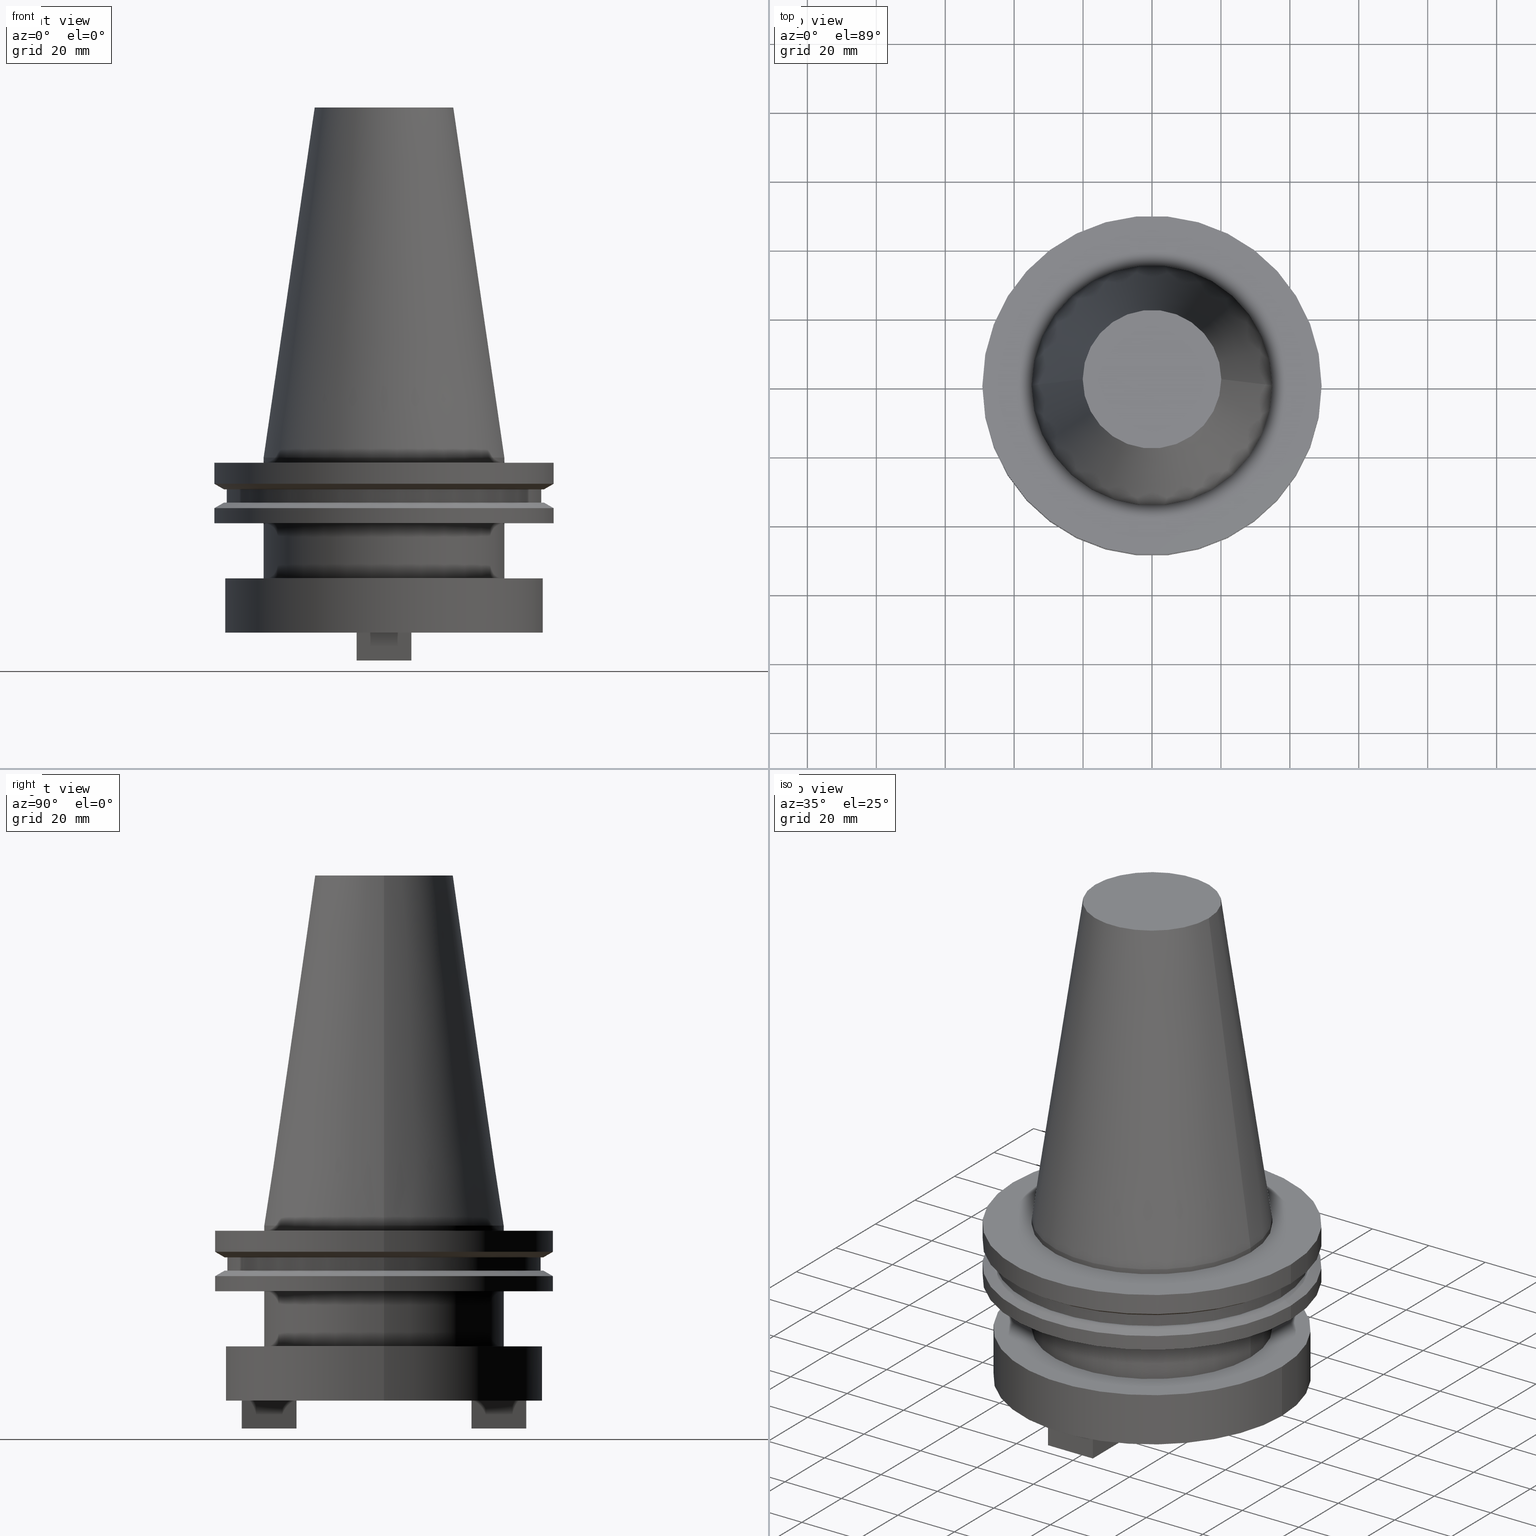
[diagram: canonical four-view strip — front | top / right | iso, engineering-drawing reading convention]
A machine part, canonical four-view strip (front | top / right | iso — engineering-drawing reading convention). The complete STEP part file that produces these views, byte-faithful:
ISO-10303-21;
HEADER;
FILE_DESCRIPTION (( 'STEP AP203' ),
    '1' );
FILE_NAME ('BCV50-SMC1_500-2.stp',
    '2022-03-03T20:09:49',
    ( '' ),
    ( '' ),
    'SwSTEP 2.0',
    'SolidWorks 2021',
    '' );
FILE_SCHEMA (( 'CONFIG_CONTROL_DESIGN' ));
ENDSEC;

DATA;
#1 = DIRECTION ( 'NONE',  ( 1.000000000000000000, 0.000000000000000000, 0.000000000000000000 ) ) ;
#2 = AXIS2_PLACEMENT_3D ( 'NONE', #373, #952, #266 ) ;
#3 = EDGE_CURVE ( 'NONE', #755, #408, #1086, .T. ) ;
#4 = AXIS2_PLACEMENT_3D ( 'NONE', #584, #330, #848 ) ;
#5 = DIRECTION ( 'NONE',  ( -1.000000000000000000, 0.000000000000000000, 0.000000000000000000 ) ) ;
#6 = CARTESIAN_POINT ( 'NONE',  ( 7.937500000000025757, 25.40250000000002117, -58.88000000000001677 ) ) ;
#7 =( GEOMETRIC_REPRESENTATION_CONTEXT ( 3 ) GLOBAL_UNCERTAINTY_ASSIGNED_CONTEXT ( ( #116 ) ) GLOBAL_UNIT_ASSIGNED_CONTEXT ( ( #1027, #192, #696 ) ) REPRESENTATION_CONTEXT ( 'NONE', 'WORKASPACE' ) );
#8 = EDGE_CURVE ( 'NONE', #659, #770, #258, .T. ) ;
#9 = EDGE_LOOP ( 'NONE', ( #786, #127, #115, #898 ) ) ;
#10 = CARTESIAN_POINT ( 'NONE',  ( 0.000000000000000000, 0.000000000000000000, 101.5999999999999943 ) ) ;
#11 = ORIENTED_EDGE ( 'NONE', *, *, #1067, .T. ) ;
#12 = DIRECTION ( 'NONE',  ( 1.000000000000000000, -0.000000000000000000, -0.000000000000000000 ) ) ;
#13 = ORIENTED_EDGE ( 'NONE', *, *, #342, .T. ) ;
#14 = DIRECTION ( 'NONE',  ( -0.000000000000000000, -0.000000000000000000, 1.000000000000000000 ) ) ;
#15 = EDGE_LOOP ( 'NONE', ( #161, #793, #152, #269 ) ) ;
#16 = CARTESIAN_POINT ( 'NONE',  ( 7.937500000000025757, -41.27750000000002473, -50.80000000000001137 ) ) ;
#17 = VERTEX_POINT ( 'NONE', #1039 ) ;
#18 = EDGE_CURVE ( 'NONE', #1048, #865, #110, .T. ) ;
#19 = CARTESIAN_POINT ( 'NONE',  ( 0.000000000000000000, 46.05019999999999669, -50.80000000000001137 ) ) ;
#20 = VECTOR ( 'NONE', #440, 1000.000000000000114 ) ;
#21 = FACE_OUTER_BOUND ( 'NONE', #1009, .T. ) ;
#22 = AXIS2_PLACEMENT_3D ( 'NONE', #349, #535, #634 ) ;
#23 = DIRECTION ( 'NONE',  ( -0.000000000000000000, -0.000000000000000000, 1.000000000000000000 ) ) ;
#24 = CIRCLE ( 'NONE', #524, 8.729999999999966676 ) ;
#25 = EDGE_LOOP ( 'NONE', ( #1065, #980, #838, #688 ) ) ;
#26 = EDGE_CURVE ( 'NONE', #770, #98, #525, .T. ) ;
#27 = LINE ( 'NONE', #877, #926 ) ;
#28 = DIRECTION ( 'NONE',  ( 1.000000000000000000, 0.000000000000000000, 0.000000000000000000 ) ) ;
#29 = ORIENTED_EDGE ( 'NONE', *, *, #410, .T. ) ;
#30 = CARTESIAN_POINT ( 'NONE',  ( -7.937499999999970690, 41.27750000000002473, -50.80000000000001137 ) ) ;
#31 = LINE ( 'NONE', #271, #867 ) ;
#32 = ORIENTED_EDGE ( 'NONE', *, *, #1078, .T. ) ;
#33 = PLANE ( 'NONE',  #119 ) ;
#34 = DIRECTION ( 'NONE',  ( 1.000000000000000000, 0.000000000000000000, 0.000000000000000000 ) ) ;
#35 = ORIENTED_EDGE ( 'NONE', *, *, #317, .T. ) ;
#36 = EDGE_CURVE ( 'NONE', #62, #741, #182, .T. ) ;
#37 = CIRCLE ( 'NONE', #470, 45.64500000000000313 ) ;
#38 = VECTOR ( 'NONE', #164, 1000.000000000000000 ) ;
#39 = DIRECTION ( 'NONE',  ( 1.000000000000000000, -1.092739197465705041E-16, 0.000000000000000000 ) ) ;
#40 = LINE ( 'NONE', #710, #262 ) ;
#41 = ORIENTED_EDGE ( 'NONE', *, *, #565, .T. ) ;
#42 = FACE_BOUND ( 'NONE', #553, .T. ) ;
#43 = DIRECTION ( 'NONE',  ( -0.000000000000000000, -0.000000000000000000, 1.000000000000000000 ) ) ;
#44 = DATE_AND_TIME ( #641, #178 ) ;
#45 = EDGE_LOOP ( 'NONE', ( #484, #1035, #168, #257 ) ) ;
#46 = CARTESIAN_POINT ( 'NONE',  ( -49.21499999999999631, 6.027099222003697826E-15, 101.5999999999999943 ) ) ;
#47 = ADVANCED_FACE ( 'NONE', ( #869 ), #155, .T. ) ;
#48 = CARTESIAN_POINT ( 'NONE',  ( 0.000000000000000000, 0.000000000000000000, -50.80000000000001137 ) ) ;
#49 = PERSON_AND_ORGANIZATION ( #949, #316 ) ;
#50 = VERTEX_POINT ( 'NONE', #1018 ) ;
#51 = DIRECTION ( 'NONE',  ( -0.000000000000000000, -0.000000000000000000, 1.000000000000000000 ) ) ;
#52 = CARTESIAN_POINT ( 'NONE',  ( 7.937500000000025757, 41.27750000000002473, -50.80000000000001137 ) ) ;
#53 = AXIS2_PLACEMENT_3D ( 'NONE', #819, #409, #989 ) ;
#54 = AXIS2_PLACEMENT_3D ( 'NONE', #131, #51, #813 ) ;
#55 = DIRECTION ( 'NONE',  ( 0.000000000000000000, -0.000000000000000000, 1.000000000000000000 ) ) ;
#56 = CALENDAR_DATE ( 2022, 3, 3 ) ;
#57 = VERTEX_POINT ( 'NONE', #607 ) ;
#58 = DIRECTION ( 'NONE',  ( -0.000000000000000000, -0.000000000000000000, 1.000000000000000000 ) ) ;
#59 = CARTESIAN_POINT ( 'NONE',  ( 7.937500000000025757, 25.40250000000002117, -58.88000000000001677 ) ) ;
#60 = DIRECTION ( 'NONE',  ( -1.000000000000000000, 0.000000000000000000, 0.000000000000000000 ) ) ;
#61 = PERSON_AND_ORGANIZATION_ROLE ( 'design_supplier' ) ;
#62 = VERTEX_POINT ( 'NONE', #532 ) ;
#63 = ADVANCED_FACE ( 'NONE', ( #940 ), #619, .F. ) ;
#64 = CARTESIAN_POINT ( 'NONE',  ( 0.000000000000000000, 0.000000000000000000, 0.000000000000000000 ) ) ;
#65 = APPROVAL_DATE_TIME ( #212, #145 ) ;
#66 = ORIENTED_EDGE ( 'NONE', *, *, #109, .T. ) ;
#67 = ADVANCED_FACE ( 'NONE', ( #358 ), #443, .F. ) ;
#68 = CARTESIAN_POINT ( 'NONE',  ( -7.937499999999970690, 41.27750000000002473, -58.88000000000001677 ) ) ;
#69 = DIRECTION ( 'NONE',  ( 1.092739197465705287E-16, -1.000000000000000000, -0.000000000000000000 ) ) ;
#70 = AXIS2_PLACEMENT_3D ( 'NONE', #726, #468, #220 ) ;
#71 = VECTOR ( 'NONE', #385, 1000.000000000000000 ) ;
#72 = CARTESIAN_POINT ( 'NONE',  ( 0.000000000000000000, 0.000000000000000000, -35.04999999999999716 ) ) ;
#73 = PRODUCT_DEFINITION_FORMATION_WITH_SPECIFIED_SOURCE ( 'ANY', '', #465, .NOT_KNOWN. ) ;
#74 = VERTEX_POINT ( 'NONE', #699 ) ;
#75 = DIRECTION ( 'NONE',  ( -1.000000000000000000, 0.000000000000000000, 0.000000000000000000 ) ) ;
#76 = ORIENTED_EDGE ( 'NONE', *, *, #317, .F. ) ;
#77 = DIRECTION ( 'NONE',  ( 0.000000000000000000, -0.000000000000000000, 1.000000000000000000 ) ) ;
#78 = DESIGN_CONTEXT ( 'detailed design', #550, 'design' ) ;
#79 = EDGE_CURVE ( 'NONE', #774, #698, #270, .T. ) ;
#80 = FACE_OUTER_BOUND ( 'NONE', #566, .T. ) ;
#81 = ORIENTED_EDGE ( 'NONE', *, *, #597, .F. ) ;
#82 = DIRECTION ( 'NONE',  ( 1.000000000000000000, 0.000000000000000000, 0.000000000000000000 ) ) ;
#83 = VERTEX_POINT ( 'NONE', #615 ) ;
#84 = CARTESIAN_POINT ( 'NONE',  ( 0.000000000000000000, 0.000000000000000000, -9.204999999999991189 ) ) ;
#85 = ORIENTED_EDGE ( 'NONE', *, *, #697, .F. ) ;
#86 = DIRECTION ( 'NONE',  ( -1.000000000000000000, 0.000000000000000000, -0.000000000000000000 ) ) ;
#87 = ORIENTED_EDGE ( 'NONE', *, *, #400, .F. ) ;
#88 = DIRECTION ( 'NONE',  ( 0.000000000000000000, 0.000000000000000000, -1.000000000000000000 ) ) ;
#89 = AXIS2_PLACEMENT_3D ( 'NONE', #668, #1013, #925 ) ;
#90 = VERTEX_POINT ( 'NONE', #363 ) ;
#91 = LINE ( 'NONE', #588, #775 ) ;
#92 = AXIS2_PLACEMENT_3D ( 'NONE', #365, #277, #792 ) ;
#93 = EDGE_LOOP ( 'NONE', ( #716, #783, #389, #459 ) ) ;
#94 = LINE ( 'NONE', #621, #849 ) ;
#95 = ORIENTED_EDGE ( 'NONE', *, *, #555, .F. ) ;
#96 = LINE ( 'NONE', #1081, #613 ) ;
#97 = ADVANCED_FACE ( 'NONE', ( #21 ), #605, .F. ) ;
#98 = VERTEX_POINT ( 'NONE', #705 ) ;
#99 = CARTESIAN_POINT ( 'NONE',  ( -7.937499999999972466, -41.27750000000002473, -58.88000000000001677 ) ) ;
#100 = DIRECTION ( 'NONE',  ( -1.000000000000000000, 0.000000000000000000, 0.000000000000000000 ) ) ;
#101 = CARTESIAN_POINT ( 'NONE',  ( -46.43919780457007818, 0.000000000000000000, -13.05499999999999794 ) ) ;
#102 = VERTEX_POINT ( 'NONE', #935 ) ;
#103 = CARTESIAN_POINT ( 'NONE',  ( -49.21499999999998920, 6.027099222003697037E-15, 101.5999999999999943 ) ) ;
#104 = DIRECTION ( 'NONE',  ( -0.000000000000000000, -0.000000000000000000, 1.000000000000000000 ) ) ;
#105 = VECTOR ( 'NONE', #814, 1000.000000000000000 ) ;
#106 = AXIS2_PLACEMENT_3D ( 'NONE', #506, #843, #86 ) ;
#107 = ORIENTED_EDGE ( 'NONE', *, *, #415, .F. ) ;
#108 = SECURITY_CLASSIFICATION ( '', '', #388 ) ;
#109 = EDGE_CURVE ( 'NONE', #585, #102, #190, .T. ) ;
#110 = LINE ( 'NONE', #863, #20 ) ;
#111 = DIRECTION ( 'NONE',  ( 1.000000000000000000, 0.000000000000000000, 0.000000000000000000 ) ) ;
#112 = ORIENTED_EDGE ( 'NONE', *, *, #498, .F. ) ;
#113 = CARTESIAN_POINT ( 'NONE',  ( 20.10819343178871321, 3.369811209154858606E-15, 101.5999999999999801 ) ) ;
#114 = FACE_OUTER_BOUND ( 'NONE', #835, .T. ) ;
#115 = ORIENTED_EDGE ( 'NONE', *, *, #498, .T. ) ;
#116 = UNCERTAINTY_MEASURE_WITH_UNIT (LENGTH_MEASURE( 1.000000000000000082E-05 ), #1027, 'distance_accuracy_value', 'NONE');
#117 = DIRECTION ( 'NONE',  ( 0.000000000000000000, 0.000000000000000000, -1.000000000000000000 ) ) ;
#118 = CARTESIAN_POINT ( 'NONE',  ( 49.21500000000000341, 0.000000000000000000, -7.602389855251287187 ) ) ;
#119 = AXIS2_PLACEMENT_3D ( 'NONE', #791, #39, #351 ) ;
#120 = VERTEX_POINT ( 'NONE', #859 ) ;
#121 = AXIS2_PLACEMENT_3D ( 'NONE', #915, #1071, #318 ) ;
#122 = EDGE_CURVE ( 'NONE', #873, #187, #1017, .T. ) ;
#123 = FACE_OUTER_BOUND ( 'NONE', #505, .T. ) ;
#124 = PRODUCT_DEFINITION_SHAPE ( 'NONE', 'NONE',  #372 ) ;
#125 = CARTESIAN_POINT ( 'NONE',  ( 0.000000000000000000, 0.000000000000000000, 101.5999999999999801 ) ) ;
#126 = PERSON_AND_ORGANIZATION ( #949, #316 ) ;
#127 = ORIENTED_EDGE ( 'NONE', *, *, #714, .T. ) ;
#128 = FACE_OUTER_BOUND ( 'NONE', #1031, .T. ) ;
#129 = DIRECTION ( 'NONE',  ( 1.000000000000000000, 0.000000000000000000, 0.000000000000000000 ) ) ;
#130 = ORIENTED_EDGE ( 'NONE', *, *, #826, .T. ) ;
#131 = CARTESIAN_POINT ( 'NONE',  ( 0.000000000000000000, 0.000000000000000000, 101.5999999999999943 ) ) ;
#132 = CARTESIAN_POINT ( 'NONE',  ( 7.937500000000023981, -25.40250000000002117, -50.80000000000001137 ) ) ;
#133 = CARTESIAN_POINT ( 'NONE',  ( 0.000000000000000000, 0.000000000000000000, -50.80000000000001137 ) ) ;
#134 = VERTEX_POINT ( 'NONE', #113 ) ;
#135 = LINE ( 'NONE', #472, #244 ) ;
#136 = AXIS2_PLACEMENT_3D ( 'NONE', #186, #268, #100 ) ;
#137 = DIRECTION ( 'NONE',  ( 1.092739197465705287E-16, -1.000000000000000000, 0.000000000000000000 ) ) ;
#138 = VECTOR ( 'NONE', #700, 1000.000000000000000 ) ;
#139 = LOCAL_TIME ( 14, 9, 49.00000000000000000, #309 ) ;
#140 = CARTESIAN_POINT ( 'NONE',  ( 0.000000000000000000, 0.000000000000000000, 101.5999999999999943 ) ) ;
#141 = ADVANCED_FACE ( 'NONE', ( #433, #447 ), #772, .F. ) ;
#142 = APPLICATION_PROTOCOL_DEFINITION ( 'international standard', 'config_control_design', 1994, #550 ) ;
#143 = ORIENTED_EDGE ( 'NONE', *, *, #701, .T. ) ;
#144 = DIRECTION ( 'NONE',  ( -0.000000000000000000, -0.000000000000000000, 1.000000000000000000 ) ) ;
#145 = APPROVAL ( #821, 'UNSPECIFIED' ) ;
#146 = FACE_OUTER_BOUND ( 'NONE', #531, .T. ) ;
#147 = COORDINATED_UNIVERSAL_TIME_OFFSET ( 6, 0, .BEHIND. ) ;
#148 = EDGE_LOOP ( 'NONE', ( #343, #488, #357, #1044 ) ) ;
#149 = DIRECTION ( 'NONE',  ( -0.000000000000000000, -0.000000000000000000, 1.000000000000000000 ) ) ;
#150 = CYLINDRICAL_SURFACE ( 'NONE', #206, 45.64500000000000313 ) ;
#151 = FACE_OUTER_BOUND ( 'NONE', #961, .T. ) ;
#152 = ORIENTED_EDGE ( 'NONE', *, *, #939, .T. ) ;
#153 = DIRECTION ( 'NONE',  ( -0.000000000000000000, -0.000000000000000000, 1.000000000000000000 ) ) ;
#154 = CARTESIAN_POINT ( 'NONE',  ( 0.000000000000000000, 34.92499999999999716, -35.04999999999999716 ) ) ;
#155 = CONICAL_SURFACE ( 'NONE', #136, 34.92499999999999005, 0.1448138465474119452 ) ;
#156 = AXIS2_PLACEMENT_3D ( 'NONE', #715, #43, #374 ) ;
#157 = AXIS2_PLACEMENT_3D ( 'NONE', #917, #764, #407 ) ;
#158 = DIRECTION ( 'NONE',  ( -0.000000000000000000, -0.000000000000000000, 1.000000000000000000 ) ) ;
#159 = EDGE_LOOP ( 'NONE', ( #682, #449, #463, #513 ) ) ;
#160 = CARTESIAN_POINT ( 'NONE',  ( -49.21499999999998920, 6.027099222003697037E-15, -14.65761014474876944 ) ) ;
#161 = ORIENTED_EDGE ( 'NONE', *, *, #759, .T. ) ;
#162 = SHAPE_DEFINITION_REPRESENTATION ( #124, #166 ) ;
#163 = ORIENTED_EDGE ( 'NONE', *, *, #565, .F. ) ;
#164 = DIRECTION ( 'NONE',  ( -1.000000000000000000, -2.185478394931410575E-16, 0.000000000000000000 ) ) ;
#165 = ORIENTED_EDGE ( 'NONE', *, *, #1004, .T. ) ;
#166 = ADVANCED_BREP_SHAPE_REPRESENTATION ( 'BCV50-SMC1_500-2', ( #1050, #1002 ), #7 ) ;
#167 = FACE_OUTER_BOUND ( 'NONE', #25, .T. ) ;
#168 = ORIENTED_EDGE ( 'NONE', *, *, #893, .F. ) ;
#169 = DIRECTION ( 'NONE',  ( -0.000000000000000000, -0.000000000000000000, 1.000000000000000000 ) ) ;
#170 = ORIENTED_EDGE ( 'NONE', *, *, #678, .F. ) ;
#171 = ADVANCED_FACE ( 'NONE', ( #451 ), #33, .F. ) ;
#172 = DIRECTION ( 'NONE',  ( -1.000000000000000000, 0.000000000000000000, -0.000000000000000000 ) ) ;
#173 = CALENDAR_DATE ( 2022, 3, 3 ) ;
#174 = CIRCLE ( 'NONE', #612, 8.729999999999968452 ) ;
#175 = CIRCLE ( 'NONE', #403, 46.43919780457007818 ) ;
#176 = ORIENTED_EDGE ( 'NONE', *, *, #228, .F. ) ;
#177 = CARTESIAN_POINT ( 'NONE',  ( -46.05019999999999669, 5.639523003009544618E-15, 0.000000000000000000 ) ) ;
#178 = LOCAL_TIME ( 14, 9, 49.00000000000000000, #647 ) ;
#179 = ORIENTED_EDGE ( 'NONE', *, *, #18, .F. ) ;
#180 = DIRECTION ( 'NONE',  ( -0.000000000000000000, -0.000000000000000000, 1.000000000000000000 ) ) ;
#181 = CC_DESIGN_PERSON_AND_ORGANIZATION_ASSIGNMENT ( #234, #458, ( #73 ) ) ;
#182 = LINE ( 'NONE', #30, #908 ) ;
#183 = FACE_OUTER_BOUND ( 'NONE', #534, .T. ) ;
#184 = ORIENTED_EDGE ( 'NONE', *, *, #669, .T. ) ;
#185 = DIRECTION ( 'NONE',  ( -0.000000000000000000, -0.000000000000000000, 1.000000000000000000 ) ) ;
#186 = CARTESIAN_POINT ( 'NONE',  ( 0.000000000000000000, 0.000000000000000000, 0.000000000000000000 ) ) ;
#187 = VERTEX_POINT ( 'NONE', #693 ) ;
#188 = ADVANCED_FACE ( 'NONE', ( #1026 ), #1059, .F. ) ;
#189 = ADVANCED_FACE ( 'NONE', ( #146 ), #959, .F. ) ;
#190 = CIRCLE ( 'NONE', #223, 34.92499999999999716 ) ;
#191 = CARTESIAN_POINT ( 'NONE',  ( 7.937500000000023981, -25.40250000000002117, -58.88000000000001677 ) ) ;
#192 =( NAMED_UNIT ( * ) PLANE_ANGLE_UNIT ( ) SI_UNIT ( $, .RADIAN. ) );
#193 = CIRCLE ( 'NONE', #538, 20.10819343178871321 ) ;
#194 = ORIENTED_EDGE ( 'NONE', *, *, #800, .T. ) ;
#195 = DIRECTION ( 'NONE',  ( -0.000000000000000000, -0.000000000000000000, 1.000000000000000000 ) ) ;
#196 = FACE_BOUND ( 'NONE', #861, .T. ) ;
#197 = VERTEX_POINT ( 'NONE', #971 ) ;
#198 = CARTESIAN_POINT ( 'NONE',  ( 0.000000000000000000, 0.000000000000000000, -19.04999999999999716 ) ) ;
#199 = ADVANCED_FACE ( 'NONE', ( #387 ), #736, .T. ) ;
#200 = DIRECTION ( 'NONE',  ( -0.000000000000000000, -0.000000000000000000, 1.000000000000000000 ) ) ;
#201 = ORIENTED_EDGE ( 'NONE', *, *, #714, .F. ) ;
#202 = DIRECTION ( 'NONE',  ( 1.000000000000000000, 0.000000000000000000, 0.000000000000000000 ) ) ;
#203 = EDGE_CURVE ( 'NONE', #1028, #187, #646, .T. ) ;
#204 = CYLINDRICAL_SURFACE ( 'NONE', #156, 49.21499999999998920 ) ;
#205 = DIRECTION ( 'NONE',  ( 1.000000000000000000, 0.000000000000000000, 0.000000000000000000 ) ) ;
#206 = AXIS2_PLACEMENT_3D ( 'NONE', #825, #1068, #907 ) ;
#207 = ORIENTED_EDGE ( 'NONE', *, *, #273, .F. ) ;
#208 = AXIS2_PLACEMENT_3D ( 'NONE', #293, #153, #490 ) ;
#209 = APPROVAL_PERSON_ORGANIZATION ( #727, #145, #630 ) ;
#210 = CARTESIAN_POINT ( 'NONE',  ( 7.937500000000025757, 41.27750000000002473, -50.80000000000001137 ) ) ;
#211 = CARTESIAN_POINT ( 'NONE',  ( 0.000000000000000000, 0.000000000000000000, -13.05499999999999794 ) ) ;
#212 = DATE_AND_TIME ( #56, #833 ) ;
#213 = EDGE_LOOP ( 'NONE', ( #76, #281, #951, #179 ) ) ;
#214 = FACE_OUTER_BOUND ( 'NONE', #93, .T. ) ;
#215 = CARTESIAN_POINT ( 'NONE',  ( 7.937500000000025757, 41.27750000000002473, -58.88000000000001677 ) ) ;
#216 = FACE_OUTER_BOUND ( 'NONE', #765, .T. ) ;
#217 = VERTEX_POINT ( 'NONE', #392 ) ;
#218 = CARTESIAN_POINT ( 'NONE',  ( 0.000000000000000000, 0.000000000000000000, 0.000000000000000000 ) ) ;
#219 = FACE_OUTER_BOUND ( 'NONE', #148, .T. ) ;
#220 = DIRECTION ( 'NONE',  ( 1.000000000000000000, 0.000000000000000000, 0.000000000000000000 ) ) ;
#221 = ORIENTED_EDGE ( 'NONE', *, *, #521, .F. ) ;
#222 = LINE ( 'NONE', #325, #493 ) ;
#223 = AXIS2_PLACEMENT_3D ( 'NONE', #198, #195, #28 ) ;
#224 = DIRECTION ( 'NONE',  ( -1.000000000000000000, -1.092739197465705287E-16, 0.000000000000000000 ) ) ;
#225 = AXIS2_PLACEMENT_3D ( 'NONE', #295, #1025, #934 ) ;
#226 = CC_DESIGN_PERSON_AND_ORGANIZATION_ASSIGNMENT ( #653, #897, ( #465 ) ) ;
#227 = CIRCLE ( 'NONE', #852, 49.21499999999998920 ) ;
#228 = EDGE_CURVE ( 'NONE', #17, #134, #756, .T. ) ;
#229 = DIRECTION ( 'NONE',  ( -0.000000000000000000, -0.000000000000000000, 1.000000000000000000 ) ) ;
#230 = EDGE_LOOP ( 'NONE', ( #87, #842 ) ) ;
#231 = PLANE ( 'NONE',  #958 ) ;
#232 = ADVANCED_FACE ( 'NONE', ( #216 ), #820, .T. ) ;
#233 = DIRECTION ( 'NONE',  ( 1.000000000000000000, 0.000000000000000000, 0.000000000000000000 ) ) ;
#234 = PERSON_AND_ORGANIZATION ( #949, #316 ) ;
#235 = ORIENTED_EDGE ( 'NONE', *, *, #960, .F. ) ;
#236 = DIRECTION ( 'NONE',  ( 1.000000000000000000, 0.000000000000000000, 0.000000000000000000 ) ) ;
#237 = LINE ( 'NONE', #1083, #384 ) ;
#238 = DIRECTION ( 'NONE',  ( 1.000000000000000000, 0.000000000000000000, 0.000000000000000000 ) ) ;
#239 = ORIENTED_EDGE ( 'NONE', *, *, #1041, .T. ) ;
#240 = CARTESIAN_POINT ( 'NONE',  ( -45.64500000000000313, 5.589900314708094957E-15, 101.5999999999999943 ) ) ;
#241 = EDGE_LOOP ( 'NONE', ( #442, #85, #292, #886 ) ) ;
#242 = VECTOR ( 'NONE', #5, 1000.000000000000000 ) ;
#243 = VECTOR ( 'NONE', #776, 1000.000000000000000 ) ;
#244 = VECTOR ( 'NONE', #58, 1000.000000000000000 ) ;
#245 = DIRECTION ( 'NONE',  ( -0.000000000000000000, -0.000000000000000000, 1.000000000000000000 ) ) ;
#246 = ORIENTED_EDGE ( 'NONE', *, *, #18, .T. ) ;
#247 = LINE ( 'NONE', #6, #38 ) ;
#248 = ORIENTED_EDGE ( 'NONE', *, *, #301, .F. ) ;
#249 = CARTESIAN_POINT ( 'NONE',  ( 0.000000000000000000, 20.10819343178871321, 101.5999999999999943 ) ) ;
#250 = ORIENTED_EDGE ( 'NONE', *, *, #780, .T. ) ;
#251 = CARTESIAN_POINT ( 'NONE',  ( -7.937499999999972466, -41.27750000000002473, -50.80000000000001137 ) ) ;
#252 = ORIENTED_EDGE ( 'NONE', *, *, #394, .F. ) ;
#253 = EDGE_CURVE ( 'NONE', #578, #1028, #420, .T. ) ;
#254 = DIRECTION ( 'NONE',  ( 0.000000000000000000, 0.000000000000000000, -1.000000000000000000 ) ) ;
#255 = VERTEX_POINT ( 'NONE', #476 ) ;
#256 = CARTESIAN_POINT ( 'NONE',  ( -46.05019999999999669, 5.639523003009544618E-15, -50.80000000000001137 ) ) ;
#257 = ORIENTED_EDGE ( 'NONE', *, *, #665, .F. ) ;
#258 = CIRCLE ( 'NONE', #995, 49.21499999999998920 ) ;
#259 = VECTOR ( 'NONE', #180, 1000.000000000000000 ) ;
#260 = CARTESIAN_POINT ( 'NONE',  ( 0.000000000000000000, 45.64500000000000313, -13.05499999999999794 ) ) ;
#261 = AXIS2_PLACEMENT_3D ( 'NONE', #260, #519, #1015 ) ;
#262 = VECTOR ( 'NONE', #616, 1000.000000000000000 ) ;
#263 = DIRECTION ( 'NONE',  ( -1.000000000000000000, 0.000000000000000000, -0.000000000000000000 ) ) ;
#264 = CARTESIAN_POINT ( 'NONE',  ( 0.000000000000000000, 0.000000000000000000, 101.5999999999999943 ) ) ;
#265 = VERTEX_POINT ( 'NONE', #537 ) ;
#266 = DIRECTION ( 'NONE',  ( 1.000000000000000000, 0.000000000000000000, 0.000000000000000000 ) ) ;
#267 = EDGE_CURVE ( 'NONE', #927, #338, #557, .T. ) ;
#268 = DIRECTION ( 'NONE',  ( 0.000000000000000000, 0.000000000000000000, -1.000000000000000000 ) ) ;
#269 = ORIENTED_EDGE ( 'NONE', *, *, #983, .T. ) ;
#270 = LINE ( 'NONE', #191, #667 ) ;
#271 = CARTESIAN_POINT ( 'NONE',  ( -7.937499999999972466, -25.40250000000000696, -58.88000000000001677 ) ) ;
#272 = ORIENTED_EDGE ( 'NONE', *, *, #475, .F. ) ;
#273 = EDGE_CURVE ( 'NONE', #527, #299, #703, .T. ) ;
#274 = AXIS2_PLACEMENT_3D ( 'NONE', #125, #965, #378 ) ;
#275 = CARTESIAN_POINT ( 'NONE',  ( 0.000000000000000000, 0.000000000000000000, 0.000000000000000000 ) ) ;
#276 = CIRCLE ( 'NONE', #739, 46.43919780457007818 ) ;
#277 = DIRECTION ( 'NONE',  ( -0.000000000000000000, -0.000000000000000000, 1.000000000000000000 ) ) ;
#278 = VECTOR ( 'NONE', #576, 1000.000000000000000 ) ;
#279 = ORIENTED_EDGE ( 'NONE', *, *, #267, .F. ) ;
#280 = DIRECTION ( 'NONE',  ( -0.000000000000000000, -0.000000000000000000, 1.000000000000000000 ) ) ;
#281 = ORIENTED_EDGE ( 'NONE', *, *, #482, .T. ) ;
#282 = DIRECTION ( 'NONE',  ( 0.000000000000000000, -0.000000000000000000, 1.000000000000000000 ) ) ;
#283 = ADVANCED_FACE ( 'NONE', ( #462 ), #847, .T. ) ;
#284 = FACE_OUTER_BOUND ( 'NONE', #1014, .T. ) ;
#285 = DIRECTION ( 'NONE',  ( 0.000000000000000000, 0.000000000000000000, 1.000000000000000000 ) ) ;
#286 = ORIENTED_EDGE ( 'NONE', *, *, #1010, .T. ) ;
#287 = FACE_BOUND ( 'NONE', #666, .T. ) ;
#288 = EDGE_CURVE ( 'NONE', #57, #661, #827, .T. ) ;
#289 = DIRECTION ( 'NONE',  ( 0.000000000000000000, 0.000000000000000000, -1.000000000000000000 ) ) ;
#290 = AXIS2_PLACEMENT_3D ( 'NONE', #809, #709, #457 ) ;
#291 = CONICAL_SURFACE ( 'NONE', #225, 49.21499999999998920, 1.047197551196554333 ) ;
#292 = ORIENTED_EDGE ( 'NONE', *, *, #939, .F. ) ;
#293 = CARTESIAN_POINT ( 'NONE',  ( 0.000000000000000000, 0.000000000000000000, 0.000000000000000000 ) ) ;
#294 = CIRCLE ( 'NONE', #789, 34.92499999999999716 ) ;
#295 = CARTESIAN_POINT ( 'NONE',  ( 0.000000000000000000, 0.000000000000000000, -14.65761014474876944 ) ) ;
#296 = CYLINDRICAL_SURFACE ( 'NONE', #1019, 34.92499999999999005 ) ;
#297 = APPROVAL_DATE_TIME ( #816, #691 ) ;
#298 = EDGE_CURVE ( 'NONE', #804, #767, #436, .T. ) ;
#299 = VERTEX_POINT ( 'NONE', #1043 ) ;
#300 = CARTESIAN_POINT ( 'NONE',  ( 8.729999999999968452, 0.000000000000000000, -50.80000000000001137 ) ) ;
#301 = EDGE_CURVE ( 'NONE', #50, #62, #544, .T. ) ;
#302 = CARTESIAN_POINT ( 'NONE',  ( 7.937500000000025757, -41.27750000000002473, -58.88000000000001677 ) ) ;
#303 = DIRECTION ( 'NONE',  ( 1.000000000000000000, -8.741913579725644271E-16, 0.000000000000000000 ) ) ;
#304 = EDGE_LOOP ( 'NONE', ( #902, #279 ) ) ;
#305 = ADVANCED_FACE ( 'NONE', ( #1064 ), #296, .T. ) ;
#306 = ADVANCED_FACE ( 'NONE', ( #284 ), #204, .T. ) ;
#307 = DIRECTION ( 'NONE',  ( -0.000000000000000000, -0.000000000000000000, 1.000000000000000000 ) ) ;
#308 = DIRECTION ( 'NONE',  ( -0.000000000000000000, -0.000000000000000000, 1.000000000000000000 ) ) ;
#309 = COORDINATED_UNIVERSAL_TIME_OFFSET ( 6, 0, .BEHIND. ) ;
#310 = ORIENTED_EDGE ( 'NONE', *, *, #868, .T. ) ;
#311 = CARTESIAN_POINT ( 'NONE',  ( 49.21499999999998920, 0.000000000000000000, -19.04999999999999716 ) ) ;
#312 = AXIS2_PLACEMENT_3D ( 'NONE', #932, #1029, #871 ) ;
#313 = LINE ( 'NONE', #731, #438 ) ;
#314 = VECTOR ( 'NONE', #185, 1000.000000000000000 ) ;
#315 = CONICAL_SURFACE ( 'NONE', #333, 34.92499999999999005, 0.1448138465474119452 ) ;
#316 = ORGANIZATION ( 'UNSPECIFIED', 'UNSPECIFIED', '' ) ;
#317 = EDGE_CURVE ( 'NONE', #90, #1048, #276, .T. ) ;
#318 = DIRECTION ( 'NONE',  ( 1.000000000000000000, 0.000000000000000000, 0.000000000000000000 ) ) ;
#319 = ORIENTED_EDGE ( 'NONE', *, *, #669, .F. ) ;
#320 = CARTESIAN_POINT ( 'NONE',  ( -7.937499999999970690, 41.27750000000002473, -50.80000000000001137 ) ) ;
#321 = CARTESIAN_POINT ( 'NONE',  ( -46.43919780457007818, 5.857130358318727293E-15, -9.204999999999991189 ) ) ;
#322 = CARTESIAN_POINT ( 'NONE',  ( 7.937500000000025757, 41.27750000000002473, -58.88000000000001677 ) ) ;
#323 = EDGE_CURVE ( 'NONE', #454, #593, #943, .T. ) ;
#324 = ORIENTED_EDGE ( 'NONE', *, *, #906, .T. ) ;
#325 = CARTESIAN_POINT ( 'NONE',  ( -34.92499999999999005, 0.000000000000000000, 0.000000000000000000 ) ) ;
#326 = ORIENTED_EDGE ( 'NONE', *, *, #461, .F. ) ;
#327 = DIRECTION ( 'NONE',  ( -0.000000000000000000, -0.000000000000000000, 1.000000000000000000 ) ) ;
#328 = CARTESIAN_POINT ( 'NONE',  ( 7.937500000000025757, 41.27750000000002473, -58.88000000000001677 ) ) ;
#329 = VERTEX_POINT ( 'NONE', #1079 ) ;
#330 = DIRECTION ( 'NONE',  ( -2.185478394931410575E-16, 1.000000000000000000, 0.000000000000000000 ) ) ;
#331 = EDGE_LOOP ( 'NONE', ( #632, #497, #371, #870 ) ) ;
#332 = VECTOR ( 'NONE', #964, 1000.000000000000000 ) ;
#333 = AXIS2_PLACEMENT_3D ( 'NONE', #218, #988, #633 ) ;
#334 = CARTESIAN_POINT ( 'NONE',  ( 0.000000000000000000, 0.000000000000000000, -14.65761014474876944 ) ) ;
#335 = COORDINATED_UNIVERSAL_TIME_OFFSET ( 6, 0, .BEHIND. ) ;
#336 = ORIENTED_EDGE ( 'NONE', *, *, #1016, .F. ) ;
#337 = DIRECTION ( 'NONE',  ( -0.000000000000000000, -0.000000000000000000, 1.000000000000000000 ) ) ;
#338 = VERTEX_POINT ( 'NONE', #569 ) ;
#339 = PLANE ( 'NONE',  #788 ) ;
#340 = ORIENTED_EDGE ( 'NONE', *, *, #379, .T. ) ;
#341 = LINE ( 'NONE', #240, #911 ) ;
#342 = EDGE_CURVE ( 'NONE', #767, #412, #509, .T. ) ;
#343 = ORIENTED_EDGE ( 'NONE', *, *, #963, .F. ) ;
#344 = PLANE ( 'NONE',  #976 ) ;
#345 = ORIENTED_EDGE ( 'NONE', *, *, #888, .T. ) ;
#346 = FACE_BOUND ( 'NONE', #748, .T. ) ;
#347 = ORIENTED_EDGE ( 'NONE', *, *, #512, .F. ) ;
#348 = AXIS2_PLACEMENT_3D ( 'NONE', #887, #567, #639 ) ;
#349 = CARTESIAN_POINT ( 'NONE',  ( 0.000000000000000000, 0.000000000000000000, -50.80000000000001137 ) ) ;
#350 = CC_DESIGN_APPROVAL ( #691, ( #73 ) ) ;
#351 = DIRECTION ( 'NONE',  ( 1.092739197465705041E-16, 1.000000000000000000, 0.000000000000000000 ) ) ;
#352 = CARTESIAN_POINT ( 'NONE',  ( 0.000000000000000000, 49.21499999999998920, -19.04999999999999716 ) ) ;
#353 = ORIENTED_EDGE ( 'NONE', *, *, #122, .F. ) ;
#354 = DIRECTION ( 'NONE',  ( -1.000000000000000000, 0.000000000000000000, 0.000000000000000000 ) ) ;
#355 = EDGE_CURVE ( 'NONE', #134, #120, #737, .T. ) ;
#356 = DIRECTION ( 'NONE',  ( 1.000000000000000000, 0.000000000000000000, 0.000000000000000000 ) ) ;
#357 = ORIENTED_EDGE ( 'NONE', *, *, #555, .T. ) ;
#358 = FACE_OUTER_BOUND ( 'NONE', #495, .T. ) ;
#359 = CARTESIAN_POINT ( 'NONE',  ( 7.937500000000025757, -41.27750000000002473, -58.88000000000001677 ) ) ;
#360 = EDGE_LOOP ( 'NONE', ( #1061, #446, #855, #707 ) ) ;
#361 = EDGE_CURVE ( 'NONE', #799, #197, #704, .T. ) ;
#362 = AXIS2_PLACEMENT_3D ( 'NONE', #815, #954, #797 ) ;
#363 = CARTESIAN_POINT ( 'NONE',  ( 46.43919780457007818, 5.857130358318725715E-15, -13.05499999999999794 ) ) ;
#364 = VECTOR ( 'NONE', #841, 999.9999999999998863 ) ;
#365 = CARTESIAN_POINT ( 'NONE',  ( 0.000000000000000000, 0.000000000000000000, 101.5999999999999943 ) ) ;
#366 = AXIS2_PLACEMENT_3D ( 'NONE', #782, #533, #539 ) ;
#367 = ORIENTED_EDGE ( 'NONE', *, *, #800, .F. ) ;
#368 = CARTESIAN_POINT ( 'NONE',  ( 0.000000000000000000, 0.000000000000000000, -9.204999999999991189 ) ) ;
#369 = ADVANCED_FACE ( 'NONE', ( #151 ), #895, .T. ) ;
#370 = DIRECTION ( 'NONE',  ( 1.000000000000000000, 0.000000000000000000, 0.000000000000000000 ) ) ;
#371 = ORIENTED_EDGE ( 'NONE', *, *, #953, .F. ) ;
#372 = PRODUCT_DEFINITION ( 'UNKNOWN', '', #73, #78 ) ;
#373 = CARTESIAN_POINT ( 'NONE',  ( 0.000000000000000000, 0.000000000000000000, -19.04999999999999716 ) ) ;
#374 = DIRECTION ( 'NONE',  ( 1.000000000000000000, 0.000000000000000000, 0.000000000000000000 ) ) ;
#375 = PERSON_AND_ORGANIZATION ( #949, #316 ) ;
#376 = ORIENTED_EDGE ( 'NONE', *, *, #475, .T. ) ;
#377 = CARTESIAN_POINT ( 'NONE',  ( 7.937500000000025757, 25.40250000000002117, -50.80000000000001137 ) ) ;
#378 = DIRECTION ( 'NONE',  ( 1.000000000000000000, 0.000000000000000000, 0.000000000000000000 ) ) ;
#379 = EDGE_CURVE ( 'NONE', #74, #774, #837, .T. ) ;
#380 = AXIS2_PLACEMENT_3D ( 'NONE', #275, #781, #520 ) ;
#381 = VECTOR ( 'NONE', #1042, 1000.000000000000000 ) ;
#382 = EDGE_LOOP ( 'NONE', ( #817, #677 ) ) ;
#383 = CARTESIAN_POINT ( 'NONE',  ( 0.000000000000000000, 0.000000000000000000, -19.04999999999999716 ) ) ;
#384 = VECTOR ( 'NONE', #327, 1000.000000000000000 ) ;
#385 = DIRECTION ( 'NONE',  ( 0.000000000000000000, -1.000000000000000000, 0.000000000000000000 ) ) ;
#386 = APPROVAL ( #1060, 'UNSPECIFIED' ) ;
#387 = FACE_OUTER_BOUND ( 'NONE', #213, .T. ) ;
#388 = SECURITY_CLASSIFICATION_LEVEL ( 'unclassified' ) ;
#389 = ORIENTED_EDGE ( 'NONE', *, *, #610, .T. ) ;
#390 = CARTESIAN_POINT ( 'NONE',  ( 34.92499999999999716, 0.000000000000000000, -35.04999999999999716 ) ) ;
#391 = DIRECTION ( 'NONE',  ( -0.000000000000000000, -0.000000000000000000, 1.000000000000000000 ) ) ;
#392 = CARTESIAN_POINT ( 'NONE',  ( 45.64500000000000313, 0.000000000000000000, -9.204999999999991189 ) ) ;
#393 = VERTEX_POINT ( 'NONE', #845 ) ;
#394 = EDGE_CURVE ( 'NONE', #98, #865, #997, .T. ) ;
#395 = CARTESIAN_POINT ( 'NONE',  ( -8.729999999999966676, 1.069116655655635232E-15, 0.000000000000000000 ) ) ;
#396 = COORDINATED_UNIVERSAL_TIME_OFFSET ( 6, 0, .BEHIND. ) ;
#397 = VERTEX_POINT ( 'NONE', #328 ) ;
#398 = DIRECTION ( 'NONE',  ( 1.000000000000000000, 0.000000000000000000, 0.000000000000000000 ) ) ;
#399 = AXIS2_PLACEMENT_3D ( 'NONE', #322, #586, #657 ) ;
#400 = EDGE_CURVE ( 'NONE', #197, #799, #689, .T. ) ;
#401 = DIRECTION ( 'NONE',  ( 1.000000000000000000, 0.000000000000000000, 0.000000000000000000 ) ) ;
#402 = VECTOR ( 'NONE', #618, 1000.000000000000000 ) ;
#403 = AXIS2_PLACEMENT_3D ( 'NONE', #368, #149, #485 ) ;
#404 = ADVANCED_FACE ( 'NONE', ( #80 ), #984, .F. ) ;
#405 = DIRECTION ( 'NONE',  ( 1.000000000000000000, 0.000000000000000000, 0.000000000000000000 ) ) ;
#406 = ORIENTED_EDGE ( 'NONE', *, *, #794, .T. ) ;
#407 = DIRECTION ( 'NONE',  ( 1.000000000000000000, 0.000000000000000000, 0.000000000000000000 ) ) ;
#408 = VERTEX_POINT ( 'NONE', #1005 ) ;
#409 = DIRECTION ( 'NONE',  ( 0.000000000000000000, 0.000000000000000000, -1.000000000000000000 ) ) ;
#410 = EDGE_CURVE ( 'NONE', #767, #804, #174, .T. ) ;
#411 = DIRECTION ( 'NONE',  ( -0.000000000000000000, -0.000000000000000000, 1.000000000000000000 ) ) ;
#412 = VERTEX_POINT ( 'NONE', #923 ) ;
#413 = CYLINDRICAL_SURFACE ( 'NONE', #89, 46.05019999999999669 ) ;
#414 = ORIENTED_EDGE ( 'NONE', *, *, #26, .F. ) ;
#415 = EDGE_CURVE ( 'NONE', #217, #329, #866, .T. ) ;
#416 = DIRECTION ( 'NONE',  ( -0.000000000000000000, -0.000000000000000000, 1.000000000000000000 ) ) ;
#417 = ADVANCED_FACE ( 'NONE', ( #754 ), #673, .F. ) ;
#418 = CARTESIAN_POINT ( 'NONE',  ( 0.000000000000000000, 0.000000000000000000, 101.5999999999999943 ) ) ;
#419 = ORIENTED_EDGE ( 'NONE', *, *, #683, .F. ) ;
#420 = CIRCLE ( 'NONE', #1034, 49.21500000000000341 ) ;
#421 = AXIS2_PLACEMENT_3D ( 'NONE', #334, #582, #423 ) ;
#422 = VECTOR ( 'NONE', #839, 1000.000000000000000 ) ;
#423 = DIRECTION ( 'NONE',  ( 1.000000000000000000, 0.000000000000000000, 0.000000000000000000 ) ) ;
#424 = ADVANCED_FACE ( 'NONE', ( #762 ), #745, .F. ) ;
#425 = EDGE_LOOP ( 'NONE', ( #507, #272, #419, #235 ) ) ;
#426 = PLANE ( 'NONE',  #106 ) ;
#427 = ORIENTED_EDGE ( 'NONE', *, *, #228, .T. ) ;
#428 = FACE_BOUND ( 'NONE', #45, .T. ) ;
#429 = VERTEX_POINT ( 'NONE', #919 ) ;
#430 = LINE ( 'NONE', #921, #1072 ) ;
#431 = ORIENTED_EDGE ( 'NONE', *, *, #1078, .F. ) ;
#432 = CARTESIAN_POINT ( 'NONE',  ( 7.937500000000025757, -41.27750000000002473, -58.88000000000001677 ) ) ;
#433 = FACE_BOUND ( 'NONE', #230, .T. ) ;
#434 = DIRECTION ( 'NONE',  ( 1.000000000000000000, 0.000000000000000000, 0.000000000000000000 ) ) ;
#435 = ORIENTED_EDGE ( 'NONE', *, *, #79, .F. ) ;
#436 = CIRCLE ( 'NONE', #1051, 8.729999999999968452 ) ;
#437 = ADVANCED_FACE ( 'NONE', ( #167 ), #1011, .T. ) ;
#438 = VECTOR ( 'NONE', #307, 1000.000000000000000 ) ;
#439 = DIRECTION ( 'NONE',  ( 0.000000000000000000, -0.000000000000000000, 1.000000000000000000 ) ) ;
#440 = DIRECTION ( 'NONE',  ( -0.8660254037844169472, 0.000000000000000000, -0.5000000000000375255 ) ) ;
#441 = FACE_OUTER_BOUND ( 'NONE', #331, .T. ) ;
#442 = ORIENTED_EDGE ( 'NONE', *, *, #683, .T. ) ;
#443 = CYLINDRICAL_SURFACE ( 'NONE', #380, 8.729999999999966676 ) ;
#444 = ADVANCED_FACE ( 'NONE', ( #573 ), #339, .T. ) ;
#445 = CARTESIAN_POINT ( 'NONE',  ( 0.000000000000000000, 0.000000000000000000, -14.65761014474876944 ) ) ;
#446 = ORIENTED_EDGE ( 'NONE', *, *, #834, .F. ) ;
#447 = FACE_OUTER_BOUND ( 'NONE', #850, .T. ) ;
#448 = LINE ( 'NONE', #955, #742 ) ;
#449 = ORIENTED_EDGE ( 'NONE', *, *, #985, .F. ) ;
#450 = AXIS2_PLACEMENT_3D ( 'NONE', #784, #874, #263 ) ;
#451 = FACE_OUTER_BOUND ( 'NONE', #360, .T. ) ;
#452 = DIRECTION ( 'NONE',  ( -0.000000000000000000, -0.000000000000000000, 1.000000000000000000 ) ) ;
#453 = VECTOR ( 'NONE', #818, 1000.000000000000000 ) ;
#454 = VERTEX_POINT ( 'NONE', #766 ) ;
#455 = APPROVAL_PERSON_ORGANIZATION ( #49, #691, #477 ) ;
#456 = DIRECTION ( 'NONE',  ( 1.000000000000000000, 0.000000000000000000, 0.000000000000000000 ) ) ;
#457 = DIRECTION ( 'NONE',  ( 1.000000000000000000, 0.000000000000000000, 0.000000000000000000 ) ) ;
#458 = PERSON_AND_ORGANIZATION_ROLE ( 'creator' ) ;
#459 = ORIENTED_EDGE ( 'NONE', *, *, #794, .F. ) ;
#460 = CARTESIAN_POINT ( 'NONE',  ( 0.000000000000000000, 0.000000000000000000, -58.88000000000001677 ) ) ;
#461 = EDGE_CURVE ( 'NONE', #659, #865, #692, .T. ) ;
#462 = FACE_OUTER_BOUND ( 'NONE', #9, .T. ) ;
#463 = ORIENTED_EDGE ( 'NONE', *, *, #645, .F. ) ;
#464 = DIRECTION ( 'NONE',  ( 0.000000000000000000, 0.000000000000000000, -1.000000000000000000 ) ) ;
#465 = PRODUCT ( 'BCV50-SMC1_500-2', 'BCV50-SMC1_500-2', '', ( #608 ) ) ;
#466 = PLANE ( 'NONE',  #627 ) ;
#467 = ADVANCED_FACE ( 'NONE', ( #123 ), #291, .T. ) ;
#468 = DIRECTION ( 'NONE',  ( -0.000000000000000000, -0.000000000000000000, 1.000000000000000000 ) ) ;
#469 = VECTOR ( 'NONE', #280, 1000.000000000000000 ) ;
#470 = AXIS2_PLACEMENT_3D ( 'NONE', #796, #14, #202 ) ;
#471 = ORIENTED_EDGE ( 'NONE', *, *, #298, .F. ) ;
#472 = CARTESIAN_POINT ( 'NONE',  ( -34.92499999999999716, 4.277078946022130887E-15, 101.5999999999999943 ) ) ;
#473 = VECTOR ( 'NONE', #1030, 1000.000000000000000 ) ;
#474 = LINE ( 'NONE', #59, #880 ) ;
#475 = EDGE_CURVE ( 'NONE', #942, #62, #884, .T. ) ;
#476 = CARTESIAN_POINT ( 'NONE',  ( -7.937499999999972466, -25.40249999999999986, -50.80000000000001137 ) ) ;
#477 = APPROVAL_ROLE ( '' ) ;
#478 = ADVANCED_FACE ( 'NONE', ( #1045, #862, #42, #428 ), #543, .F. ) ;
#479 = ORIENTED_EDGE ( 'NONE', *, *, #518, .T. ) ;
#480 = CYLINDRICAL_SURFACE ( 'NONE', #928, 45.64500000000000313 ) ;
#481 = DIRECTION ( 'NONE',  ( 1.000000000000000000, 0.000000000000000000, 0.000000000000000000 ) ) ;
#482 = EDGE_CURVE ( 'NONE', #90, #98, #94, .T. ) ;
#483 = APPLICATION_CONTEXT ( 'configuration controlled 3d designs of mechanical parts and assemblies' ) ;
#484 = ORIENTED_EDGE ( 'NONE', *, *, #868, .F. ) ;
#485 = DIRECTION ( 'NONE',  ( 1.000000000000000000, 0.000000000000000000, 0.000000000000000000 ) ) ;
#486 = CARTESIAN_POINT ( 'NONE',  ( 7.937500000000025757, -41.27750000000002473, -58.88000000000001677 ) ) ;
#487 = DIRECTION ( 'NONE',  ( 1.000000000000000000, 0.000000000000000000, 0.000000000000000000 ) ) ;
#488 = ORIENTED_EDGE ( 'NONE', *, *, #273, .T. ) ;
#489 = VECTOR ( 'NONE', #628, 1000.000000000000000 ) ;
#490 = DIRECTION ( 'NONE',  ( 1.000000000000000000, 0.000000000000000000, 0.000000000000000000 ) ) ;
#491 = VECTOR ( 'NONE', #69, 1000.000000000000000 ) ;
#492 = DIRECTION ( 'NONE',  ( 0.000000000000000000, -0.000000000000000000, 1.000000000000000000 ) ) ;
#493 = VECTOR ( 'NONE', #660, 999.9999999999998863 ) ;
#494 = DIRECTION ( 'NONE',  ( 1.000000000000000000, 0.000000000000000000, 0.000000000000000000 ) ) ;
#495 = EDGE_LOOP ( 'NONE', ( #924, #13, #32, #170 ) ) ;
#496 = CARTESIAN_POINT ( 'NONE',  ( 7.937500000000025757, 25.40250000000002117, -50.80000000000001137 ) ) ;
#497 = ORIENTED_EDGE ( 'NONE', *, *, #528, .T. ) ;
#498 = EDGE_CURVE ( 'NONE', #57, #1028, #27, .T. ) ;
#499 = CARTESIAN_POINT ( 'NONE',  ( 0.000000000000000000, 0.000000000000000000, -9.204999999999991189 ) ) ;
#500 = ORIENTED_EDGE ( 'NONE', *, *, #8, .T. ) ;
#501 = DIRECTION ( 'NONE',  ( 0.000000000000000000, -1.000000000000000000, 0.000000000000000000 ) ) ;
#502 = ORIENTED_EDGE ( 'NONE', *, *, #298, .T. ) ;
#503 = DIRECTION ( 'NONE',  ( -0.000000000000000000, -0.000000000000000000, 1.000000000000000000 ) ) ;
#504 = ADVANCED_FACE ( 'NONE', ( #128 ), #344, .F. ) ;
#505 = EDGE_LOOP ( 'NONE', ( #729, #812, #246, #286 ) ) ;
#506 = CARTESIAN_POINT ( 'NONE',  ( 0.000000000000000000, 8.729999999999966676, -35.04999999999999716 ) ) ;
#507 = ORIENTED_EDGE ( 'NONE', *, *, #36, .F. ) ;
#508 = CIRCLE ( 'NONE', #810, 49.21499999999998920 ) ;
#509 = LINE ( 'NONE', #395, #558 ) ;
#510 = VERTEX_POINT ( 'NONE', #210 ) ;
#511 = LINE ( 'NONE', #16, #422 ) ;
#512 = EDGE_CURVE ( 'NONE', #1080, #397, #708, .T. ) ;
#513 = ORIENTED_EDGE ( 'NONE', *, *, #79, .T. ) ;
#514 = LINE ( 'NONE', #99, #878 ) ;
#515 = DIRECTION ( 'NONE',  ( 1.092739197465705041E-16, 1.000000000000000000, -0.000000000000000000 ) ) ;
#516 = DIRECTION ( 'NONE',  ( -0.000000000000000000, -0.000000000000000000, 1.000000000000000000 ) ) ;
#517 = ORIENTED_EDGE ( 'NONE', *, *, #518, .F. ) ;
#518 = EDGE_CURVE ( 'NONE', #299, #527, #37, .T. ) ;
#519 = DIRECTION ( 'NONE',  ( 0.000000000000000000, 0.000000000000000000, -1.000000000000000000 ) ) ;
#520 = DIRECTION ( 'NONE',  ( 1.000000000000000000, 0.000000000000000000, 0.000000000000000000 ) ) ;
#521 = EDGE_CURVE ( 'NONE', #393, #83, #771, .T. ) ;
#522 = ORIENTED_EDGE ( 'NONE', *, *, #342, .F. ) ;
#523 = CIRCLE ( 'NONE', #53, 34.92499999999999716 ) ;
#524 = AXIS2_PLACEMENT_3D ( 'NONE', #562, #144, #603 ) ;
#525 = LINE ( 'NONE', #695, #469 ) ;
#526 = CARTESIAN_POINT ( 'NONE',  ( 0.000000000000000000, 0.000000000000000000, 0.000000000000000000 ) ) ;
#527 = VERTEX_POINT ( 'NONE', #1052 ) ;
#528 = EDGE_CURVE ( 'NONE', #578, #873, #930, .T. ) ;
#529 = DIRECTION ( 'NONE',  ( 0.000000000000000000, -1.000000000000000000, -0.000000000000000000 ) ) ;
#530 = PLANE ( 'NONE',  #1023 ) ;
#531 = EDGE_LOOP ( 'NONE', ( #642, #435, #1040, #239 ) ) ;
#532 = CARTESIAN_POINT ( 'NONE',  ( -7.937499999999972466, 25.40250000000001762, -50.80000000000001137 ) ) ;
#533 = DIRECTION ( 'NONE',  ( -0.000000000000000000, -0.000000000000000000, 1.000000000000000000 ) ) ;
#534 = EDGE_LOOP ( 'NONE', ( #376, #248, #649, #1006 ) ) ;
#535 = DIRECTION ( 'NONE',  ( -0.000000000000000000, -0.000000000000000000, 1.000000000000000000 ) ) ;
#536 = AXIS2_PLACEMENT_3D ( 'NONE', #10, #990, #238 ) ;
#537 = CARTESIAN_POINT ( 'NONE',  ( -34.92499999999999005, 0.000000000000000000, 0.000000000000000000 ) ) ;
#538 = AXIS2_PLACEMENT_3D ( 'NONE', #962, #717, #650 ) ;
#539 = DIRECTION ( 'NONE',  ( 1.000000000000000000, 0.000000000000000000, 0.000000000000000000 ) ) ;
#540 = ORIENTED_EDGE ( 'NONE', *, *, #780, .F. ) ;
#541 = CC_DESIGN_APPROVAL ( #145, ( #372 ) ) ;
#542 = EDGE_CURVE ( 'NONE', #338, #927, #577, .T. ) ;
#543 = PLANE ( 'NONE',  #670 ) ;
#544 = LINE ( 'NONE', #556, #575 ) ;
#545 = PERSON_AND_ORGANIZATION_ROLE ( 'creator' ) ;
#546 = ORIENTED_EDGE ( 'NONE', *, *, #701, .F. ) ;
#547 = CC_DESIGN_PERSON_AND_ORGANIZATION_ASSIGNMENT ( #636, #61, ( #73 ) ) ;
#548 = FACE_OUTER_BOUND ( 'NONE', #1088, .T. ) ;
#549 = EDGE_CURVE ( 'NONE', #102, #585, #740, .T. ) ;
#550 = APPLICATION_CONTEXT ( 'configuration controlled 3d designs of mechanical parts and assemblies' ) ;
#551 = DIRECTION ( 'NONE',  ( 1.000000000000000000, 0.000000000000000000, 0.000000000000000000 ) ) ;
#552 = PERSON_AND_ORGANIZATION ( #949, #316 ) ;
#553 = EDGE_LOOP ( 'NONE', ( #502, #29 ) ) ;
#554 = CYLINDRICAL_SURFACE ( 'NONE', #54, 49.21499999999999631 ) ;
#555 = EDGE_CURVE ( 'NONE', #299, #217, #853, .T. ) ;
#556 = CARTESIAN_POINT ( 'NONE',  ( -7.937499999999972466, 25.40250000000001762, -58.88000000000001677 ) ) ;
#557 = CIRCLE ( 'NONE', #876, 46.05019999999999669 ) ;
#558 = VECTOR ( 'NONE', #158, 1000.000000000000000 ) ;
#559 = ORIENTED_EDGE ( 'NONE', *, *, #985, .T. ) ;
#560 = CARTESIAN_POINT ( 'NONE',  ( 7.937500000000025757, -41.27750000000002473, -50.80000000000001137 ) ) ;
#561 = AXIS2_PLACEMENT_3D ( 'NONE', #418, #601, #82 ) ;
#562 = CARTESIAN_POINT ( 'NONE',  ( 0.000000000000000000, 0.000000000000000000, -35.04999999999999716 ) ) ;
#563 = ADVANCED_FACE ( 'NONE', ( #287, #685 ), #604, .F. ) ;
#564 = DIRECTION ( 'NONE',  ( 1.000000000000000000, 0.000000000000000000, 0.000000000000000000 ) ) ;
#565 = EDGE_CURVE ( 'NONE', #83, #408, #957, .T. ) ;
#566 = EDGE_LOOP ( 'NONE', ( #522, #471, #680, #143 ) ) ;
#567 = DIRECTION ( 'NONE',  ( -0.000000000000000000, -0.000000000000000000, 1.000000000000000000 ) ) ;
#568 = EDGE_CURVE ( 'NONE', #83, #74, #514, .T. ) ;
#569 = CARTESIAN_POINT ( 'NONE',  ( 46.05019999999999669, 0.000000000000000000, -50.80000000000001137 ) ) ;
#570 = ORIENTED_EDGE ( 'NONE', *, *, #8, .F. ) ;
#571 = CARTESIAN_POINT ( 'NONE',  ( 7.937500000000023981, -25.40250000000002117, -58.88000000000001677 ) ) ;
#572 = DIRECTION ( 'NONE',  ( 0.000000000000000000, 1.000000000000000000, 0.000000000000000000 ) ) ;
#573 = FACE_OUTER_BOUND ( 'NONE', #15, .T. ) ;
#574 = EDGE_LOOP ( 'NONE', ( #546, #431 ) ) ;
#575 = VECTOR ( 'NONE', #896, 1000.000000000000000 ) ;
#576 = DIRECTION ( 'NONE',  ( 0.000000000000000000, 1.000000000000000000, 0.000000000000000000 ) ) ;
#577 = CIRCLE ( 'NONE', #22, 46.05019999999999669 ) ;
#578 = VERTEX_POINT ( 'NONE', #982 ) ;
#579 = LINE ( 'NONE', #851, #402 ) ;
#580 = AXIS2_PLACEMENT_3D ( 'NONE', #872, #200, #111 ) ;
#581 = ADVANCED_FACE ( 'NONE', ( #219 ), #150, .T. ) ;
#582 = DIRECTION ( 'NONE',  ( -0.000000000000000000, -0.000000000000000000, 1.000000000000000000 ) ) ;
#583 = CARTESIAN_POINT ( 'NONE',  ( 7.937500000000025757, -41.27750000000002473, -50.80000000000001137 ) ) ;
#584 = CARTESIAN_POINT ( 'NONE',  ( 7.937500000000025757, 25.40250000000002117, -58.88000000000001677 ) ) ;
#585 = VERTEX_POINT ( 'NONE', #975 ) ;
#586 = DIRECTION ( 'NONE',  ( -1.000000000000000000, 0.000000000000000000, -0.000000000000000000 ) ) ;
#587 = EDGE_LOOP ( 'NONE', ( #746, #163, #221, #559 ) ) ;
#588 = CARTESIAN_POINT ( 'NONE',  ( 34.92499999999999716, 0.000000000000000000, 101.5999999999999943 ) ) ;
#589 = ORIENTED_EDGE ( 'NONE', *, *, #568, .F. ) ;
#590 = DIRECTION ( 'NONE',  ( -1.000000000000000000, 0.000000000000000000, -0.000000000000000000 ) ) ;
#591 = ORIENTED_EDGE ( 'NONE', *, *, #836, .F. ) ;
#592 = LINE ( 'NONE', #251, #278 ) ;
#593 = VERTEX_POINT ( 'NONE', #994 ) ;
#594 = AXIS2_PLACEMENT_3D ( 'NONE', #600, #777, #946 ) ;
#595 = AXIS2_PLACEMENT_3D ( 'NONE', #84, #245, #494 ) ;
#596 = AXIS2_PLACEMENT_3D ( 'NONE', #264, #337, #992 ) ;
#597 = EDGE_CURVE ( 'NONE', #1028, #578, #829, .T. ) ;
#598 = CARTESIAN_POINT ( 'NONE',  ( -7.937499999999972466, -41.27750000000002473, -58.88000000000001677 ) ) ;
#599 = CC_DESIGN_SECURITY_CLASSIFICATION ( #108, ( #73 ) ) ;
#600 = CARTESIAN_POINT ( 'NONE',  ( -7.937499999999972466, -41.27750000000002473, -58.88000000000001677 ) ) ;
#601 = DIRECTION ( 'NONE',  ( -0.000000000000000000, -0.000000000000000000, 1.000000000000000000 ) ) ;
#602 = ORIENTED_EDGE ( 'NONE', *, *, #834, .T. ) ;
#603 = DIRECTION ( 'NONE',  ( 1.000000000000000000, 0.000000000000000000, 0.000000000000000000 ) ) ;
#604 = PLANE ( 'NONE',  #261 ) ;
#605 = PLANE ( 'NONE',  #594 ) ;
#606 = VERTEX_POINT ( 'NONE', #970 ) ;
#607 = CARTESIAN_POINT ( 'NONE',  ( 46.43919780457007818, 0.000000000000000000, -9.204999999999991189 ) ) ;
#608 = MECHANICAL_CONTEXT ( 'NONE', #483, 'mechanical' ) ;
#609 = ORIENTED_EDGE ( 'NONE', *, *, #361, .T. ) ;
#610 = EDGE_CURVE ( 'NONE', #338, #454, #313, .T. ) ;
#611 = AXIS2_PLACEMENT_3D ( 'NONE', #978, #289, #60 ) ;
#612 = AXIS2_PLACEMENT_3D ( 'NONE', #828, #503, #1 ) ;
#613 = VECTOR ( 'NONE', #12, 1000.000000000000000 ) ;
#614 = AXIS2_PLACEMENT_3D ( 'NONE', #947, #23, #434 ) ;
#615 = CARTESIAN_POINT ( 'NONE',  ( -7.937499999999972466, -41.27750000000002473, -58.88000000000001677 ) ) ;
#616 = DIRECTION ( 'NONE',  ( -0.000000000000000000, -0.000000000000000000, 1.000000000000000000 ) ) ;
#617 = ORIENTED_EDGE ( 'NONE', *, *, #26, .T. ) ;
#618 = DIRECTION ( 'NONE',  ( -0.000000000000000000, -0.000000000000000000, 1.000000000000000000 ) ) ;
#619 = PLANE ( 'NONE',  #626 ) ;
#620 = ORIENTED_EDGE ( 'NONE', *, *, #1038, .T. ) ;
#621 = CARTESIAN_POINT ( 'NONE',  ( 49.21499999999998920, 6.027099222003697037E-15, -14.65761014474876944 ) ) ;
#622 = DIRECTION ( 'NONE',  ( -0.000000000000000000, -0.000000000000000000, 1.000000000000000000 ) ) ;
#623 = DIRECTION ( 'NONE',  ( 1.000000000000000000, 0.000000000000000000, 0.000000000000000000 ) ) ;
#624 = VERTEX_POINT ( 'NONE', #900 ) ;
#625 = DIRECTION ( 'NONE',  ( 0.8660254037844169472, 1.060575238724880168E-16, -0.5000000000000375255 ) ) ;
#626 = AXIS2_PLACEMENT_3D ( 'NONE', #950, #529, #117 ) ;
#627 = AXIS2_PLACEMENT_3D ( 'NONE', #892, #77, #743 ) ;
#628 = DIRECTION ( 'NONE',  ( -0.000000000000000000, -0.000000000000000000, 1.000000000000000000 ) ) ;
#629 = VECTOR ( 'NONE', #169, 1000.000000000000000 ) ;
#630 = APPROVAL_ROLE ( '' ) ;
#631 = ADVANCED_FACE ( 'NONE', ( #735 ), #231, .F. ) ;
#632 = ORIENTED_EDGE ( 'NONE', *, *, #597, .T. ) ;
#633 = DIRECTION ( 'NONE',  ( -1.000000000000000000, 0.000000000000000000, 0.000000000000000000 ) ) ;
#634 = DIRECTION ( 'NONE',  ( 1.000000000000000000, 0.000000000000000000, 0.000000000000000000 ) ) ;
#635 = CARTESIAN_POINT ( 'NONE',  ( 7.937500000000025757, -41.27750000000002473, -58.88000000000001677 ) ) ;
#636 = PERSON_AND_ORGANIZATION ( #949, #316 ) ;
#637 = ORIENTED_EDGE ( 'NONE', *, *, #787, .T. ) ;
#638 = DIRECTION ( 'NONE',  ( 1.000000000000000000, 0.000000000000000000, 0.000000000000000000 ) ) ;
#639 = DIRECTION ( 'NONE',  ( 1.000000000000000000, 0.000000000000000000, 0.000000000000000000 ) ) ;
#640 = DIRECTION ( 'NONE',  ( -0.000000000000000000, -0.000000000000000000, 1.000000000000000000 ) ) ;
#641 = CALENDAR_DATE ( 2022, 3, 3 ) ;
#642 = ORIENTED_EDGE ( 'NONE', *, *, #665, .T. ) ;
#643 = LINE ( 'NONE', #969, #453 ) ;
#644 = LINE ( 'NONE', #486, #491 ) ;
#645 = EDGE_CURVE ( 'NONE', #774, #393, #644, .T. ) ;
#646 = LINE ( 'NONE', #889, #489 ) ;
#647 = COORDINATED_UNIVERSAL_TIME_OFFSET ( 6, 0, .BEHIND. ) ;
#648 = VECTOR ( 'NONE', #652, 1000.000000000000000 ) ;
#649 = ORIENTED_EDGE ( 'NONE', *, *, #983, .F. ) ;
#650 = DIRECTION ( 'NONE',  ( 1.000000000000000000, 0.000000000000000000, 0.000000000000000000 ) ) ;
#651 = FACE_BOUND ( 'NONE', #382, .T. ) ;
#652 = DIRECTION ( 'NONE',  ( 1.000000000000000000, -8.741913579725644271E-16, -0.000000000000000000 ) ) ;
#653 = PERSON_AND_ORGANIZATION ( #949, #316 ) ;
#654 = ORIENTED_EDGE ( 'NONE', *, *, #826, .F. ) ;
#655 = DIRECTION ( 'NONE',  ( -0.000000000000000000, -0.000000000000000000, 1.000000000000000000 ) ) ;
#656 = LINE ( 'NONE', #132, #105 ) ;
#657 = DIRECTION ( 'NONE',  ( -0.000000000000000000, 0.000000000000000000, 1.000000000000000000 ) ) ;
#658 = ADVANCED_FACE ( 'NONE', ( #662, #651 ), #466, .F. ) ;
#659 = VERTEX_POINT ( 'NONE', #1077 ) ;
#660 = DIRECTION ( 'NONE',  ( -0.1443082272672999988, 0.000000000000000000, -0.9895327864921755756 ) ) ;
#661 = VERTEX_POINT ( 'NONE', #321 ) ;
#662 = FACE_OUTER_BOUND ( 'NONE', #916, .T. ) ;
#663 = CARTESIAN_POINT ( 'NONE',  ( 0.000000000000000000, 0.000000000000000000, -1.499999999999987566 ) ) ;
#664 = DATE_AND_TIME ( #173, #1024 ) ;
#665 = EDGE_CURVE ( 'NONE', #255, #698, #656, .T. ) ;
#666 = EDGE_LOOP ( 'NONE', ( #517, #207 ) ) ;
#667 = VECTOR ( 'NONE', #104, 1000.000000000000000 ) ;
#668 = CARTESIAN_POINT ( 'NONE',  ( 0.000000000000000000, 0.000000000000000000, 0.000000000000000000 ) ) ;
#669 = EDGE_CURVE ( 'NONE', #840, #606, #523, .T. ) ;
#670 = AXIS2_PLACEMENT_3D ( 'NONE', #19, #439, #456 ) ;
#671 = EDGE_LOOP ( 'NONE', ( #591, #319, #345, #733 ) ) ;
#672 = AXIS2_PLACEMENT_3D ( 'NONE', #1007, #768, #914 ) ;
#673 = PLANE ( 'NONE',  #720 ) ;
#674 = APPROVAL_DATE_TIME ( #664, #386 ) ;
#675 = ORIENTED_EDGE ( 'NONE', *, *, #549, .T. ) ;
#676 = CYLINDRICAL_SURFACE ( 'NONE', #561, 34.92499999999999716 ) ;
#677 = ORIENTED_EDGE ( 'NONE', *, *, #1001, .T. ) ;
#678 = EDGE_CURVE ( 'NONE', #804, #624, #237, .T. ) ;
#679 = CARTESIAN_POINT ( 'NONE',  ( 0.000000000000000000, 0.000000000000000000, -58.88000000000001677 ) ) ;
#680 = ORIENTED_EDGE ( 'NONE', *, *, #678, .T. ) ;
#681 = FACE_OUTER_BOUND ( 'NONE', #1057, .T. ) ;
#682 = ORIENTED_EDGE ( 'NONE', *, *, #893, .T. ) ;
#683 = EDGE_CURVE ( 'NONE', #510, #942, #806, .T. ) ;
#684 = ADVANCED_FACE ( 'NONE', ( #725 ), #1058, .F. ) ;
#685 = FACE_OUTER_BOUND ( 'NONE', #1075, .T. ) ;
#686 = CARTESIAN_POINT ( 'NONE',  ( 0.000000000000000000, 0.000000000000000000, -19.04999999999999716 ) ) ;
#687 = PLANE ( 'NONE',  #4 ) ;
#688 = ORIENTED_EDGE ( 'NONE', *, *, #1067, .F. ) ;
#689 = CIRCLE ( 'NONE', #121, 34.92499999999999005 ) ;
#690 = AXIS2_PLACEMENT_3D ( 'NONE', #1076, #655, #236 ) ;
#691 = APPROVAL ( #1056, 'UNSPECIFIED' ) ;
#692 = LINE ( 'NONE', #103, #332 ) ;
#693 = CARTESIAN_POINT ( 'NONE',  ( 49.21499999999999631, 0.000000000000000000, -1.499999999999987566 ) ) ;
#694 = EDGE_LOOP ( 'NONE', ( #760, #609, #11, #540 ) ) ;
#695 = CARTESIAN_POINT ( 'NONE',  ( 49.21499999999998920, 0.000000000000000000, 101.5999999999999943 ) ) ;
#696 =( NAMED_UNIT ( * ) SI_UNIT ( $, .STERADIAN. ) SOLID_ANGLE_UNIT ( ) );
#697 = EDGE_CURVE ( 'NONE', #429, #942, #474, .T. ) ;
#698 = VERTEX_POINT ( 'NONE', #1063 ) ;
#699 = CARTESIAN_POINT ( 'NONE',  ( -7.937499999999972466, -25.40250000000000696, -58.88000000000001677 ) ) ;
#700 = DIRECTION ( 'NONE',  ( -0.8660254037844273833, 1.060575238724893110E-16, 0.5000000000000195399 ) ) ;
#701 = EDGE_CURVE ( 'NONE', #624, #412, #24, .T. ) ;
#702 = ORIENTED_EDGE ( 'NONE', *, *, #836, .T. ) ;
#703 = CIRCLE ( 'NONE', #70, 45.64500000000000313 ) ;
#704 = CIRCLE ( 'NONE', #758, 34.92499999999999005 ) ;
#705 = CARTESIAN_POINT ( 'NONE',  ( 49.21499999999998920, 0.000000000000000000, -14.65761014474876944 ) ) ;
#706 = CARTESIAN_POINT ( 'NONE',  ( -46.43919780457007818, 5.687161494633754392E-15, -9.204999999999991189 ) ) ;
#707 = ORIENTED_EDGE ( 'NONE', *, *, #301, .T. ) ;
#708 = LINE ( 'NONE', #215, #381 ) ;
#709 = DIRECTION ( 'NONE',  ( -0.000000000000000000, -0.000000000000000000, 1.000000000000000000 ) ) ;
#710 = CARTESIAN_POINT ( 'NONE',  ( 34.92499999999999005, 0.000000000000000000, 101.5999999999999943 ) ) ;
#711 = ORIENTED_EDGE ( 'NONE', *, *, #542, .T. ) ;
#712 = CARTESIAN_POINT ( 'NONE',  ( 45.64500000000000313, 0.000000000000000000, 101.5999999999999943 ) ) ;
#713 = EDGE_CURVE ( 'NONE', #799, #265, #579, .T. ) ;
#714 = EDGE_CURVE ( 'NONE', #661, #57, #175, .T. ) ;
#715 = CARTESIAN_POINT ( 'NONE',  ( 0.000000000000000000, 0.000000000000000000, 101.5999999999999943 ) ) ;
#716 = ORIENTED_EDGE ( 'NONE', *, *, #906, .F. ) ;
#717 = DIRECTION ( 'NONE',  ( -0.000000000000000000, -0.000000000000000000, 1.000000000000000000 ) ) ;
#718 = DIRECTION ( 'NONE',  ( 0.8660254037844273833, 0.000000000000000000, 0.5000000000000195399 ) ) ;
#719 = PRODUCT_RELATED_PRODUCT_CATEGORY ( 'detail', '', ( #465 ) ) ;
#720 = AXIS2_PLACEMENT_3D ( 'NONE', #249, #88, #172 ) ;
#721 = CARTESIAN_POINT ( 'NONE',  ( 0.000000000000000000, 0.000000000000000000, 101.5999999999999943 ) ) ;
#722 = CIRCLE ( 'NONE', #366, 46.43919780457007818 ) ;
#723 = EDGE_LOOP ( 'NONE', ( #956, #176, #904, #250 ) ) ;
#724 = DIRECTION ( 'NONE',  ( -0.000000000000000000, -0.000000000000000000, 1.000000000000000000 ) ) ;
#725 = FACE_OUTER_BOUND ( 'NONE', #159, .T. ) ;
#726 = CARTESIAN_POINT ( 'NONE',  ( 0.000000000000000000, 0.000000000000000000, -13.05499999999999794 ) ) ;
#727 = PERSON_AND_ORGANIZATION ( #949, #316 ) ;
#728 = ADVANCED_FACE ( 'NONE', ( #805 ), #315, .T. ) ;
#729 = ORIENTED_EDGE ( 'NONE', *, *, #482, .F. ) ;
#730 = DIRECTION ( 'NONE',  ( 1.092739197465705041E-16, 1.000000000000000000, -0.000000000000000000 ) ) ;
#731 = CARTESIAN_POINT ( 'NONE',  ( 46.05019999999999669, 0.000000000000000000, 0.000000000000000000 ) ) ;
#732 = DIRECTION ( 'NONE',  ( 0.000000000000000000, 1.000000000000000000, 0.000000000000000000 ) ) ;
#733 = ORIENTED_EDGE ( 'NONE', *, *, #549, .F. ) ;
#734 = CARTESIAN_POINT ( 'NONE',  ( 0.000000000000000000, 0.000000000000000000, 101.5999999999999943 ) ) ;
#735 = FACE_OUTER_BOUND ( 'NONE', #574, .T. ) ;
#736 = CONICAL_SURFACE ( 'NONE', #611, 49.21499999999998920, 1.047197551196554333 ) ;
#737 = LINE ( 'NONE', #903, #364 ) ;
#738 = DATE_AND_TIME ( #803, #929 ) ;
#739 = AXIS2_PLACEMENT_3D ( 'NONE', #211, #885, #129 ) ;
#740 = CIRCLE ( 'NONE', #2, 34.92499999999999716 ) ;
#741 = VERTEX_POINT ( 'NONE', #320 ) ;
#742 = VECTOR ( 'NONE', #452, 1000.000000000000000 ) ;
#743 = DIRECTION ( 'NONE',  ( 1.000000000000000000, 0.000000000000000000, 0.000000000000000000 ) ) ;
#744 = ADVANCED_FACE ( 'NONE', ( #899 ), #480, .T. ) ;
#745 = PLANE ( 'NONE',  #399 ) ;
#746 = ORIENTED_EDGE ( 'NONE', *, *, #3, .T. ) ;
#747 = LINE ( 'NONE', #177, #629 ) ;
#748 = EDGE_LOOP ( 'NONE', ( #184, #194 ) ) ;
#749 = CC_DESIGN_DATE_AND_TIME_ASSIGNMENT ( #44, #966, ( #108 ) ) ;
#750 = DIRECTION ( 'NONE',  ( -0.000000000000000000, -0.000000000000000000, 1.000000000000000000 ) ) ;
#751 = ORIENTED_EDGE ( 'NONE', *, *, #963, .T. ) ;
#752 = DIRECTION ( 'NONE',  ( -0.000000000000000000, -0.000000000000000000, 1.000000000000000000 ) ) ;
#753 = ORIENTED_EDGE ( 'NONE', *, *, #203, .T. ) ;
#754 = FACE_OUTER_BOUND ( 'NONE', #1003, .T. ) ;
#755 = VERTEX_POINT ( 'NONE', #560 ) ;
#756 = CIRCLE ( 'NONE', #274, 20.10819343178871321 ) ;
#757 = LINE ( 'NONE', #359, #473 ) ;
#758 = AXIS2_PLACEMENT_3D ( 'NONE', #663, #411, #996 ) ;
#759 = EDGE_CURVE ( 'NONE', #50, #1080, #1066, .T. ) ;
#760 = ORIENTED_EDGE ( 'NONE', *, *, #713, .F. ) ;
#761 = CC_DESIGN_APPROVAL ( #386, ( #108 ) ) ;
#762 = FACE_OUTER_BOUND ( 'NONE', #241, .T. ) ;
#763 = ORIENTED_EDGE ( 'NONE', *, *, #610, .F. ) ;
#764 = DIRECTION ( 'NONE',  ( -0.000000000000000000, -0.000000000000000000, 1.000000000000000000 ) ) ;
#765 = EDGE_LOOP ( 'NONE', ( #130, #922, #252, #414 ) ) ;
#766 = CARTESIAN_POINT ( 'NONE',  ( 46.05019999999999669, 0.000000000000000000, -35.04999999999999716 ) ) ;
#767 = VERTEX_POINT ( 'NONE', #974 ) ;
#768 = DIRECTION ( 'NONE',  ( -0.000000000000000000, -0.000000000000000000, 1.000000000000000000 ) ) ;
#769 = CC_DESIGN_DATE_AND_TIME_ASSIGNMENT ( #738, #1073, ( #372 ) ) ;
#770 = VERTEX_POINT ( 'NONE', #311 ) ;
#771 = LINE ( 'NONE', #432, #910 ) ;
#772 = PLANE ( 'NONE',  #450 ) ;
#773 = DIRECTION ( 'NONE',  ( 0.000000000000000000, -0.000000000000000000, 1.000000000000000000 ) ) ;
#774 = VERTEX_POINT ( 'NONE', #571 ) ;
#775 = VECTOR ( 'NONE', #752, 1000.000000000000000 ) ;
#776 = DIRECTION ( 'NONE',  ( -1.000000000000000000, -2.185478394931410575E-16, 0.000000000000000000 ) ) ;
#777 = DIRECTION ( 'NONE',  ( 1.000000000000000000, -0.000000000000000000, 0.000000000000000000 ) ) ;
#778 = CARTESIAN_POINT ( 'NONE',  ( -7.937499999999970690, 41.27750000000002473, -58.88000000000001677 ) ) ;
#779 = ORIENTED_EDGE ( 'NONE', *, *, #288, .T. ) ;
#780 = EDGE_CURVE ( 'NONE', #265, #120, #979, .T. ) ;
#781 = DIRECTION ( 'NONE',  ( -0.000000000000000000, -0.000000000000000000, 1.000000000000000000 ) ) ;
#782 = CARTESIAN_POINT ( 'NONE',  ( 0.000000000000000000, 0.000000000000000000, -13.05499999999999794 ) ) ;
#783 = ORIENTED_EDGE ( 'NONE', *, *, #267, .T. ) ;
#784 = CARTESIAN_POINT ( 'NONE',  ( 0.000000000000000000, 49.21499999999999631, -1.499999999999992895 ) ) ;
#785 = DIRECTION ( 'NONE',  ( -0.000000000000000000, -0.000000000000000000, 1.000000000000000000 ) ) ;
#786 = ORIENTED_EDGE ( 'NONE', *, *, #1004, .F. ) ;
#787 = EDGE_CURVE ( 'NONE', #134, #17, #193, .T. ) ;
#788 = AXIS2_PLACEMENT_3D ( 'NONE', #679, #254, #590 ) ;
#789 = AXIS2_PLACEMENT_3D ( 'NONE', #832, #464, #75 ) ;
#790 = CIRCLE ( 'NONE', #614, 8.729999999999966676 ) ;
#791 = CARTESIAN_POINT ( 'NONE',  ( -7.937499999999970690, 41.27750000000002473, -58.88000000000001677 ) ) ;
#792 = DIRECTION ( 'NONE',  ( 1.000000000000000000, 0.000000000000000000, 0.000000000000000000 ) ) ;
#793 = ORIENTED_EDGE ( 'NONE', *, *, #512, .T. ) ;
#794 = EDGE_CURVE ( 'NONE', #593, #454, #830, .T. ) ;
#795 = ADVANCED_FACE ( 'NONE', ( #214 ), #905, .T. ) ;
#796 = CARTESIAN_POINT ( 'NONE',  ( 0.000000000000000000, 0.000000000000000000, -13.05499999999999794 ) ) ;
#797 = DIRECTION ( 'NONE',  ( 1.000000000000000000, 0.000000000000000000, 0.000000000000000000 ) ) ;
#798 = PERSON_AND_ORGANIZATION_ROLE ( 'classification_officer' ) ;
#799 = VERTEX_POINT ( 'NONE', #1062 ) ;
#800 = EDGE_CURVE ( 'NONE', #606, #840, #294, .T. ) ;
#801 = DIRECTION ( 'NONE',  ( -0.000000000000000000, -0.000000000000000000, 1.000000000000000000 ) ) ;
#802 = DIRECTION ( 'NONE',  ( -0.000000000000000000, -0.000000000000000000, 1.000000000000000000 ) ) ;
#803 = CALENDAR_DATE ( 2022, 3, 3 ) ;
#804 = VERTEX_POINT ( 'NONE', #300 ) ;
#805 = FACE_OUTER_BOUND ( 'NONE', #723, .T. ) ;
#806 = LINE ( 'NONE', #52, #71 ) ;
#807 = AXIS2_PLACEMENT_3D ( 'NONE', #1047, #881, #303 ) ;
#808 = AXIS2_PLACEMENT_3D ( 'NONE', #499, #750, #405 ) ;
#809 = CARTESIAN_POINT ( 'NONE',  ( 0.000000000000000000, 0.000000000000000000, -9.204999999999991189 ) ) ;
#810 = AXIS2_PLACEMENT_3D ( 'NONE', #383, #724, #638 ) ;
#811 = ADVANCED_FACE ( 'NONE', ( #548 ), #554, .T. ) ;
#812 = ORIENTED_EDGE ( 'NONE', *, *, #1038, .F. ) ;
#813 = DIRECTION ( 'NONE',  ( 1.000000000000000000, 0.000000000000000000, 0.000000000000000000 ) ) ;
#814 = DIRECTION ( 'NONE',  ( 1.000000000000000000, -8.741913579725644271E-16, -0.000000000000000000 ) ) ;
#815 = CARTESIAN_POINT ( 'NONE',  ( 0.000000000000000000, 0.000000000000000000, -9.204999999999991189 ) ) ;
#816 = DATE_AND_TIME ( #986, #139 ) ;
#817 = ORIENTED_EDGE ( 'NONE', *, *, #415, .T. ) ;
#818 = DIRECTION ( 'NONE',  ( -0.000000000000000000, -0.000000000000000000, 1.000000000000000000 ) ) ;
#819 = CARTESIAN_POINT ( 'NONE',  ( 0.000000000000000000, 0.000000000000000000, -35.04999999999999716 ) ) ;
#820 = CYLINDRICAL_SURFACE ( 'NONE', #894, 49.21499999999998920 ) ;
#821 = APPROVAL_STATUS ( 'not_yet_approved' ) ;
#822 = ORIENTED_EDGE ( 'NONE', *, *, #854, .F. ) ;
#823 = DIRECTION ( 'NONE',  ( 1.000000000000000000, 0.000000000000000000, 0.000000000000000000 ) ) ;
#824 = ORIENTED_EDGE ( 'NONE', *, *, #323, .F. ) ;
#825 = CARTESIAN_POINT ( 'NONE',  ( 0.000000000000000000, 0.000000000000000000, 101.5999999999999943 ) ) ;
#826 = EDGE_CURVE ( 'NONE', #770, #659, #508, .T. ) ;
#827 = CIRCLE ( 'NONE', #290, 46.43919780457007818 ) ;
#828 = CARTESIAN_POINT ( 'NONE',  ( 0.000000000000000000, 0.000000000000000000, -50.80000000000001137 ) ) ;
#829 = CIRCLE ( 'NONE', #348, 49.21500000000000341 ) ;
#830 = CIRCLE ( 'NONE', #690, 46.05019999999999669 ) ;
#831 = EDGE_LOOP ( 'NONE', ( #367, #702, #991, #883 ) ) ;
#832 = CARTESIAN_POINT ( 'NONE',  ( 0.000000000000000000, 0.000000000000000000, -35.04999999999999716 ) ) ;
#833 = LOCAL_TIME ( 14, 9, 49.00000000000000000, #147 ) ;
#834 = EDGE_CURVE ( 'NONE', #1080, #741, #643, .T. ) ;
#835 = EDGE_LOOP ( 'NONE', ( #654, #570 ) ) ;
#836 = EDGE_CURVE ( 'NONE', #606, #102, #135, .T. ) ;
#837 = LINE ( 'NONE', #1085, #648 ) ;
#838 = ORIENTED_EDGE ( 'NONE', *, *, #882, .F. ) ;
#839 = DIRECTION ( 'NONE',  ( 1.092739197465705287E-16, -1.000000000000000000, -0.000000000000000000 ) ) ;
#840 = VERTEX_POINT ( 'NONE', #390 ) ;
#841 = DIRECTION ( 'NONE',  ( 0.1443082272672999988, 1.767266086135277066E-17, -0.9895327864921755756 ) ) ;
#842 = ORIENTED_EDGE ( 'NONE', *, *, #361, .F. ) ;
#843 = DIRECTION ( 'NONE',  ( 0.000000000000000000, 0.000000000000000000, -1.000000000000000000 ) ) ;
#844 = ORIENTED_EDGE ( 'NONE', *, *, #323, .T. ) ;
#845 = CARTESIAN_POINT ( 'NONE',  ( 7.937500000000025757, -41.27750000000002473, -58.88000000000001677 ) ) ;
#846 = EDGE_LOOP ( 'NONE', ( #711, #324, #824, #763 ) ) ;
#847 = CONICAL_SURFACE ( 'NONE', #362, 46.43919780457007818, 1.047197551196575205 ) ;
#848 = DIRECTION ( 'NONE',  ( -1.000000000000000000, -2.185478394931410575E-16, 0.000000000000000000 ) ) ;
#849 = VECTOR ( 'NONE', #625, 1000.000000000000114 ) ;
#850 = EDGE_LOOP ( 'NONE', ( #1012, #1022 ) ) ;
#851 = CARTESIAN_POINT ( 'NONE',  ( -34.92499999999999005, 4.277078946022130098E-15, 101.5999999999999943 ) ) ;
#852 = AXIS2_PLACEMENT_3D ( 'NONE', #445, #936, #205 ) ;
#853 = LINE ( 'NONE', #712, #314 ) ;
#854 = EDGE_CURVE ( 'NONE', #17, #265, #222, .T. ) ;
#855 = ORIENTED_EDGE ( 'NONE', *, *, #759, .F. ) ;
#856 = CARTESIAN_POINT ( 'NONE',  ( -49.21499999999999631, 6.027099222003697826E-15, -1.499999999999987566 ) ) ;
#857 = EDGE_LOOP ( 'NONE', ( #1082, #938, #999, #822 ) ) ;
#858 = DIRECTION ( 'NONE',  ( 1.000000000000000000, 0.000000000000000000, -0.000000000000000000 ) ) ;
#859 = CARTESIAN_POINT ( 'NONE',  ( 34.92499999999999005, 4.277078946022130098E-15, 0.000000000000000000 ) ) ;
#860 = FACE_OUTER_BOUND ( 'NONE', #846, .T. ) ;
#861 = EDGE_LOOP ( 'NONE', ( #66, #675 ) ) ;
#862 = FACE_OUTER_BOUND ( 'NONE', #304, .T. ) ;
#863 = CARTESIAN_POINT ( 'NONE',  ( -49.21499999999998920, 0.000000000000000000, -14.65761014474876944 ) ) ;
#864 = APPLICATION_PROTOCOL_DEFINITION ( 'international standard', 'config_control_design', 1994, #483 ) ;
#865 = VERTEX_POINT ( 'NONE', #160 ) ;
#866 = CIRCLE ( 'NONE', #808, 45.64500000000000313 ) ;
#867 = VECTOR ( 'NONE', #785, 1000.000000000000000 ) ;
#868 = EDGE_CURVE ( 'NONE', #408, #255, #592, .T. ) ;
#869 = FACE_OUTER_BOUND ( 'NONE', #857, .T. ) ;
#870 = ORIENTED_EDGE ( 'NONE', *, *, #203, .F. ) ;
#871 = DIRECTION ( 'NONE',  ( 1.000000000000000000, 0.000000000000000000, 0.000000000000000000 ) ) ;
#872 = CARTESIAN_POINT ( 'NONE',  ( 0.000000000000000000, 0.000000000000000000, -9.204999999999991189 ) ) ;
#873 = VERTEX_POINT ( 'NONE', #856 ) ;
#874 = DIRECTION ( 'NONE',  ( 0.000000000000000000, 0.000000000000000000, -1.000000000000000000 ) ) ;
#875 = ORIENTED_EDGE ( 'NONE', *, *, #568, .T. ) ;
#876 = AXIS2_PLACEMENT_3D ( 'NONE', #133, #802, #370 ) ;
#877 = CARTESIAN_POINT ( 'NONE',  ( 46.43919780457007818, 0.000000000000000000, -9.204999999999991189 ) ) ;
#878 = VECTOR ( 'NONE', #572, 1000.000000000000000 ) ;
#879 = VECTOR ( 'NONE', #730, 1000.000000000000000 ) ;
#880 = VECTOR ( 'NONE', #391, 1000.000000000000000 ) ;
#881 = DIRECTION ( 'NONE',  ( -8.741913579725644271E-16, -1.000000000000000000, 0.000000000000000000 ) ) ;
#882 = EDGE_CURVE ( 'NONE', #120, #265, #944, .T. ) ;
#883 = ORIENTED_EDGE ( 'NONE', *, *, #888, .F. ) ;
#884 = LINE ( 'NONE', #377, #243 ) ;
#885 = DIRECTION ( 'NONE',  ( -0.000000000000000000, -0.000000000000000000, 1.000000000000000000 ) ) ;
#886 = ORIENTED_EDGE ( 'NONE', *, *, #1016, .T. ) ;
#887 = CARTESIAN_POINT ( 'NONE',  ( 0.000000000000000000, 0.000000000000000000, -7.602389855251287187 ) ) ;
#888 = EDGE_CURVE ( 'NONE', #840, #585, #91, .T. ) ;
#889 = CARTESIAN_POINT ( 'NONE',  ( 49.21499999999999631, 0.000000000000000000, 101.5999999999999943 ) ) ;
#890 = ORIENTED_EDGE ( 'NONE', *, *, #288, .F. ) ;
#891 = DIRECTION ( 'NONE',  ( -0.000000000000000000, -0.000000000000000000, 1.000000000000000000 ) ) ;
#892 = CARTESIAN_POINT ( 'NONE',  ( 0.000000000000000000, 46.43919780457007818, -9.204999999999998295 ) ) ;
#893 = EDGE_CURVE ( 'NONE', #698, #755, #511, .T. ) ;
#894 = AXIS2_PLACEMENT_3D ( 'NONE', #721, #640, #551 ) ;
#895 = CONICAL_SURFACE ( 'NONE', #595, 46.43919780457007818, 1.047197551196575205 ) ;
#896 = DIRECTION ( 'NONE',  ( -0.000000000000000000, -0.000000000000000000, 1.000000000000000000 ) ) ;
#897 = PERSON_AND_ORGANIZATION_ROLE ( 'design_owner' ) ;
#898 = ORIENTED_EDGE ( 'NONE', *, *, #253, .F. ) ;
#899 = FACE_OUTER_BOUND ( 'NONE', #973, .T. ) ;
#900 = CARTESIAN_POINT ( 'NONE',  ( 8.729999999999966676, 0.000000000000000000, -35.04999999999999716 ) ) ;
#901 = DIRECTION ( 'NONE',  ( 1.000000000000000000, 0.000000000000000000, 0.000000000000000000 ) ) ;
#902 = ORIENTED_EDGE ( 'NONE', *, *, #542, .F. ) ;
#903 = CARTESIAN_POINT ( 'NONE',  ( 34.92499999999999005, 4.277078946022130098E-15, 0.000000000000000000 ) ) ;
#904 = ORIENTED_EDGE ( 'NONE', *, *, #854, .T. ) ;
#905 = CYLINDRICAL_SURFACE ( 'NONE', #208, 46.05019999999999669 ) ;
#906 = EDGE_CURVE ( 'NONE', #927, #593, #747, .T. ) ;
#907 = DIRECTION ( 'NONE',  ( 1.000000000000000000, 0.000000000000000000, 0.000000000000000000 ) ) ;
#908 = VECTOR ( 'NONE', #515, 1000.000000000000000 ) ;
#909 = DIRECTION ( 'NONE',  ( -0.000000000000000000, -0.000000000000000000, 1.000000000000000000 ) ) ;
#910 = VECTOR ( 'NONE', #354, 1000.000000000000000 ) ;
#911 = VECTOR ( 'NONE', #516, 1000.000000000000000 ) ;
#912 = EDGE_LOOP ( 'NONE', ( #948, #336, #347, #602 ) ) ;
#913 = ADVANCED_FACE ( 'NONE', ( #1087 ), #1020, .T. ) ;
#914 = DIRECTION ( 'NONE',  ( 1.000000000000000000, 0.000000000000000000, 0.000000000000000000 ) ) ;
#915 = CARTESIAN_POINT ( 'NONE',  ( 0.000000000000000000, 0.000000000000000000, -1.499999999999987566 ) ) ;
#916 = EDGE_LOOP ( 'NONE', ( #890, #201 ) ) ;
#917 = CARTESIAN_POINT ( 'NONE',  ( 0.000000000000000000, 0.000000000000000000, -1.499999999999987566 ) ) ;
#918 = ORIENTED_EDGE ( 'NONE', *, *, #253, .T. ) ;
#919 = CARTESIAN_POINT ( 'NONE',  ( 7.937500000000025757, 25.40250000000002117, -58.88000000000001677 ) ) ;
#920 = ORIENTED_EDGE ( 'NONE', *, *, #528, .F. ) ;
#921 = CARTESIAN_POINT ( 'NONE',  ( 7.937500000000025757, 41.27750000000002473, -58.88000000000001677 ) ) ;
#922 = ORIENTED_EDGE ( 'NONE', *, *, #461, .T. ) ;
#923 = CARTESIAN_POINT ( 'NONE',  ( -8.729999999999966676, 1.069116655655635232E-15, -35.04999999999999716 ) ) ;
#924 = ORIENTED_EDGE ( 'NONE', *, *, #410, .F. ) ;
#925 = DIRECTION ( 'NONE',  ( 1.000000000000000000, 0.000000000000000000, 0.000000000000000000 ) ) ;
#926 = VECTOR ( 'NONE', #718, 1000.000000000000000 ) ;
#927 = VERTEX_POINT ( 'NONE', #256 ) ;
#928 = AXIS2_PLACEMENT_3D ( 'NONE', #734, #981, #823 ) ;
#929 = LOCAL_TIME ( 14, 9, 49.00000000000000000, #396 ) ;
#930 = LINE ( 'NONE', #46, #1070 ) ;
#931 = ADVANCED_FACE ( 'NONE', ( #183 ), #687, .F. ) ;
#932 = CARTESIAN_POINT ( 'NONE',  ( 0.000000000000000000, 0.000000000000000000, -1.499999999999987566 ) ) ;
#933 = ORIENTED_EDGE ( 'NONE', *, *, #645, .T. ) ;
#934 = DIRECTION ( 'NONE',  ( -1.000000000000000000, 0.000000000000000000, 0.000000000000000000 ) ) ;
#935 = CARTESIAN_POINT ( 'NONE',  ( -34.92499999999999716, 4.277078946022130887E-15, -19.04999999999999716 ) ) ;
#936 = DIRECTION ( 'NONE',  ( -0.000000000000000000, -0.000000000000000000, 1.000000000000000000 ) ) ;
#937 = CC_DESIGN_PERSON_AND_ORGANIZATION_ASSIGNMENT ( #552, #798, ( #108 ) ) ;
#938 = ORIENTED_EDGE ( 'NONE', *, *, #355, .T. ) ;
#939 = EDGE_CURVE ( 'NONE', #397, #429, #430, .T. ) ;
#940 = FACE_OUTER_BOUND ( 'NONE', #912, .T. ) ;
#941 = LINE ( 'NONE', #706, #138 ) ;
#942 = VERTEX_POINT ( 'NONE', #496 ) ;
#943 = CIRCLE ( 'NONE', #1053, 46.05019999999999669 ) ;
#944 = CIRCLE ( 'NONE', #672, 34.92499999999999005 ) ;
#945 = ADVANCED_FACE ( 'NONE', ( #346, #681 ), #426, .F. ) ;
#946 = DIRECTION ( 'NONE',  ( 0.000000000000000000, 0.000000000000000000, -1.000000000000000000 ) ) ;
#947 = CARTESIAN_POINT ( 'NONE',  ( 0.000000000000000000, 0.000000000000000000, -35.04999999999999716 ) ) ;
#948 = ORIENTED_EDGE ( 'NONE', *, *, #960, .T. ) ;
#949 = PERSON ( 'UNSPECIFIED', 'UNSPECIFIED', 'UNSPECIFIED', ('UNSPECIFIED'), ('UNSPECIFIED'), ('UNSPECIFIED') ) ;
#950 = CARTESIAN_POINT ( 'NONE',  ( 7.937500000000025757, 41.27750000000002473, -58.88000000000001677 ) ) ;
#951 = ORIENTED_EDGE ( 'NONE', *, *, #394, .T. ) ;
#952 = DIRECTION ( 'NONE',  ( -0.000000000000000000, -0.000000000000000000, 1.000000000000000000 ) ) ;
#953 = EDGE_CURVE ( 'NONE', #187, #873, #1037, .T. ) ;
#954 = DIRECTION ( 'NONE',  ( -0.000000000000000000, -0.000000000000000000, 1.000000000000000000 ) ) ;
#955 = CARTESIAN_POINT ( 'NONE',  ( 7.937500000000025757, 41.27750000000002473, -58.88000000000001677 ) ) ;
#956 = ORIENTED_EDGE ( 'NONE', *, *, #355, .F. ) ;
#957 = LINE ( 'NONE', #598, #259 ) ;
#958 = AXIS2_PLACEMENT_3D ( 'NONE', #154, #492, #401 ) ;
#959 = PLANE ( 'NONE',  #807 ) ;
#960 = EDGE_CURVE ( 'NONE', #741, #510, #96, .T. ) ;
#961 = EDGE_LOOP ( 'NONE', ( #779, #165, #81, #112 ) ) ;
#962 = CARTESIAN_POINT ( 'NONE',  ( 0.000000000000000000, 0.000000000000000000, 101.5999999999999801 ) ) ;
#963 = EDGE_CURVE ( 'NONE', #527, #329, #341, .T. ) ;
#964 = DIRECTION ( 'NONE',  ( -0.000000000000000000, -0.000000000000000000, 1.000000000000000000 ) ) ;
#965 = DIRECTION ( 'NONE',  ( -0.000000000000000000, -0.000000000000000000, 1.000000000000000000 ) ) ;
#966 = DATE_TIME_ROLE ( 'classification_date' ) ;
#967 = ORIENTED_EDGE ( 'NONE', *, *, #521, .T. ) ;
#968 = ADVANCED_FACE ( 'NONE', ( #1000 ), #676, .T. ) ;
#969 = CARTESIAN_POINT ( 'NONE',  ( -7.937499999999970690, 41.27750000000002473, -58.88000000000001677 ) ) ;
#970 = CARTESIAN_POINT ( 'NONE',  ( -34.92499999999999716, 4.277078946022130887E-15, -35.04999999999999716 ) ) ;
#971 = CARTESIAN_POINT ( 'NONE',  ( 34.92499999999999005, 0.000000000000000000, -1.499999999999987566 ) ) ;
#972 = APPROVAL_ROLE ( '' ) ;
#973 = EDGE_LOOP ( 'NONE', ( #479, #751, #107, #95 ) ) ;
#974 = CARTESIAN_POINT ( 'NONE',  ( -8.729999999999968452, 1.069116655655635429E-15, -50.80000000000001137 ) ) ;
#975 = CARTESIAN_POINT ( 'NONE',  ( 34.92499999999999716, 0.000000000000000000, -19.04999999999999716 ) ) ;
#976 = AXIS2_PLACEMENT_3D ( 'NONE', #460, #282, #858 ) ;
#977 = ADVANCED_FACE ( 'NONE', ( #860 ), #413, .T. ) ;
#978 = CARTESIAN_POINT ( 'NONE',  ( 0.000000000000000000, 0.000000000000000000, -14.65761014474876944 ) ) ;
#979 = CIRCLE ( 'NONE', #1021, 34.92499999999999005 ) ;
#980 = ORIENTED_EDGE ( 'NONE', *, *, #713, .T. ) ;
#981 = DIRECTION ( 'NONE',  ( -0.000000000000000000, -0.000000000000000000, 1.000000000000000000 ) ) ;
#982 = CARTESIAN_POINT ( 'NONE',  ( -49.21500000000000341, 6.027099222003699404E-15, -7.602389855251287187 ) ) ;
#983 = EDGE_CURVE ( 'NONE', #429, #50, #247, .T. ) ;
#984 = CYLINDRICAL_SURFACE ( 'NONE', #1036, 8.729999999999966676 ) ;
#985 = EDGE_CURVE ( 'NONE', #393, #755, #757, .T. ) ;
#986 = CALENDAR_DATE ( 2022, 3, 3 ) ;
#987 = ORIENTED_EDGE ( 'NONE', *, *, #1041, .F. ) ;
#988 = DIRECTION ( 'NONE',  ( 0.000000000000000000, 0.000000000000000000, -1.000000000000000000 ) ) ;
#989 = DIRECTION ( 'NONE',  ( -1.000000000000000000, 0.000000000000000000, 0.000000000000000000 ) ) ;
#990 = DIRECTION ( 'NONE',  ( -0.000000000000000000, -0.000000000000000000, 1.000000000000000000 ) ) ;
#991 = ORIENTED_EDGE ( 'NONE', *, *, #109, .F. ) ;
#992 = DIRECTION ( 'NONE',  ( 1.000000000000000000, 0.000000000000000000, 0.000000000000000000 ) ) ;
#993 = ORIENTED_EDGE ( 'NONE', *, *, #1010, .F. ) ;
#994 = CARTESIAN_POINT ( 'NONE',  ( -46.05019999999999669, 5.639523003009544618E-15, -35.04999999999999716 ) ) ;
#995 = AXIS2_PLACEMENT_3D ( 'NONE', #686, #1032, #356 ) ;
#996 = DIRECTION ( 'NONE',  ( 1.000000000000000000, 0.000000000000000000, 0.000000000000000000 ) ) ;
#997 = CIRCLE ( 'NONE', #421, 49.21499999999998920 ) ;
#998 = AXIS2_PLACEMENT_3D ( 'NONE', #302, #224, #137 ) ;
#999 = ORIENTED_EDGE ( 'NONE', *, *, #882, .T. ) ;
#1000 = FACE_OUTER_BOUND ( 'NONE', #831, .T. ) ;
#1001 = EDGE_CURVE ( 'NONE', #329, #217, #1054, .T. ) ;
#1002 = AXIS2_PLACEMENT_3D ( 'NONE', #526, #285, #623 ) ;
#1003 = EDGE_LOOP ( 'NONE', ( #427, #637 ) ) ;
#1004 = EDGE_CURVE ( 'NONE', #661, #578, #941, .T. ) ;
#1005 = CARTESIAN_POINT ( 'NONE',  ( -7.937499999999972466, -41.27750000000002473, -50.80000000000001137 ) ) ;
#1006 = ORIENTED_EDGE ( 'NONE', *, *, #697, .T. ) ;
#1007 = CARTESIAN_POINT ( 'NONE',  ( 0.000000000000000000, 0.000000000000000000, 0.000000000000000000 ) ) ;
#1008 = CC_DESIGN_PERSON_AND_ORGANIZATION_ASSIGNMENT ( #126, #545, ( #372 ) ) ;
#1009 = EDGE_LOOP ( 'NONE', ( #310, #987, #589, #41 ) ) ;
#1010 = EDGE_CURVE ( 'NONE', #865, #98, #227, .T. ) ;
#1011 = CYLINDRICAL_SURFACE ( 'NONE', #536, 34.92499999999999005 ) ;
#1012 = ORIENTED_EDGE ( 'NONE', *, *, #953, .T. ) ;
#1013 = DIRECTION ( 'NONE',  ( -0.000000000000000000, -0.000000000000000000, 1.000000000000000000 ) ) ;
#1014 = EDGE_LOOP ( 'NONE', ( #326, #500, #617, #993 ) ) ;
#1015 = DIRECTION ( 'NONE',  ( -1.000000000000000000, 0.000000000000000000, -0.000000000000000000 ) ) ;
#1016 = EDGE_CURVE ( 'NONE', #397, #510, #448, .T. ) ;
#1017 = CIRCLE ( 'NONE', #312, 49.21499999999999631 ) ;
#1018 = CARTESIAN_POINT ( 'NONE',  ( -7.937499999999972466, 25.40250000000001762, -58.88000000000001677 ) ) ;
#1019 = AXIS2_PLACEMENT_3D ( 'NONE', #140, #308, #901 ) ;
#1020 = CYLINDRICAL_SURFACE ( 'NONE', #596, 34.92499999999999716 ) ;
#1021 = AXIS2_PLACEMENT_3D ( 'NONE', #1049, #891, #398 ) ;
#1022 = ORIENTED_EDGE ( 'NONE', *, *, #122, .T. ) ;
#1023 = AXIS2_PLACEMENT_3D ( 'NONE', #352, #773, #34 ) ;
#1024 = LOCAL_TIME ( 14, 9, 49.00000000000000000, #335 ) ;
#1025 = DIRECTION ( 'NONE',  ( 0.000000000000000000, 0.000000000000000000, -1.000000000000000000 ) ) ;
#1026 = FACE_OUTER_BOUND ( 'NONE', #587, .T. ) ;
#1027 =( LENGTH_UNIT ( ) NAMED_UNIT ( * ) SI_UNIT ( .MILLI., .METRE. ) );
#1028 = VERTEX_POINT ( 'NONE', #118 ) ;
#1029 = DIRECTION ( 'NONE',  ( -0.000000000000000000, -0.000000000000000000, 1.000000000000000000 ) ) ;
#1030 = DIRECTION ( 'NONE',  ( -0.000000000000000000, -0.000000000000000000, 1.000000000000000000 ) ) ;
#1031 = EDGE_LOOP ( 'NONE', ( #875, #340, #933, #967 ) ) ;
#1032 = DIRECTION ( 'NONE',  ( -0.000000000000000000, -0.000000000000000000, 1.000000000000000000 ) ) ;
#1033 = CYLINDRICAL_SURFACE ( 'NONE', #92, 49.21499999999999631 ) ;
#1034 = AXIS2_PLACEMENT_3D ( 'NONE', #1055, #229, #564 ) ;
#1035 = ORIENTED_EDGE ( 'NONE', *, *, #3, .F. ) ;
#1036 = AXIS2_PLACEMENT_3D ( 'NONE', #64, #416, #487 ) ;
#1037 = CIRCLE ( 'NONE', #157, 49.21499999999999631 ) ;
#1038 = EDGE_CURVE ( 'NONE', #1048, #90, #722, .T. ) ;
#1039 = CARTESIAN_POINT ( 'NONE',  ( -20.10819343178871321, 0.000000000000000000, 101.5999999999999801 ) ) ;
#1040 = ORIENTED_EDGE ( 'NONE', *, *, #379, .F. ) ;
#1041 = EDGE_CURVE ( 'NONE', #74, #255, #31, .T. ) ;
#1042 = DIRECTION ( 'NONE',  ( 1.000000000000000000, -0.000000000000000000, -0.000000000000000000 ) ) ;
#1043 = CARTESIAN_POINT ( 'NONE',  ( 45.64500000000000313, 0.000000000000000000, -13.05499999999999794 ) ) ;
#1044 = ORIENTED_EDGE ( 'NONE', *, *, #1001, .F. ) ;
#1045 = FACE_BOUND ( 'NONE', #425, .T. ) ;
#1046 = ADVANCED_FACE ( 'NONE', ( #441 ), #1033, .T. ) ;
#1047 = CARTESIAN_POINT ( 'NONE',  ( 7.937500000000023981, -25.40250000000002117, -58.88000000000001677 ) ) ;
#1048 = VERTEX_POINT ( 'NONE', #101 ) ;
#1049 = CARTESIAN_POINT ( 'NONE',  ( 0.000000000000000000, 0.000000000000000000, 0.000000000000000000 ) ) ;
#1050 = MANIFOLD_SOLID_BREP ( 'Boss-Extrude1', #1069 ) ;
#1051 = AXIS2_PLACEMENT_3D ( 'NONE', #48, #622, #481 ) ;
#1052 = CARTESIAN_POINT ( 'NONE',  ( -45.64500000000000313, 5.589900314708094957E-15, -13.05499999999999794 ) ) ;
#1053 = AXIS2_PLACEMENT_3D ( 'NONE', #72, #909, #233 ) ;
#1054 = CIRCLE ( 'NONE', #580, 45.64500000000000313 ) ;
#1055 = CARTESIAN_POINT ( 'NONE',  ( 0.000000000000000000, 0.000000000000000000, -7.602389855251287187 ) ) ;
#1056 = APPROVAL_STATUS ( 'not_yet_approved' ) ;
#1057 = EDGE_LOOP ( 'NONE', ( #844, #406 ) ) ;
#1058 = PLANE ( 'NONE',  #998 ) ;
#1059 = PLANE ( 'NONE',  #1089 ) ;
#1060 = APPROVAL_STATUS ( 'not_yet_approved' ) ;
#1061 = ORIENTED_EDGE ( 'NONE', *, *, #36, .T. ) ;
#1062 = CARTESIAN_POINT ( 'NONE',  ( -34.92499999999999005, 4.277078946022130098E-15, -1.499999999999987566 ) ) ;
#1063 = CARTESIAN_POINT ( 'NONE',  ( 7.937500000000023981, -25.40250000000002117, -50.80000000000001137 ) ) ;
#1064 = FACE_OUTER_BOUND ( 'NONE', #694, .T. ) ;
#1065 = ORIENTED_EDGE ( 'NONE', *, *, #400, .T. ) ;
#1066 = LINE ( 'NONE', #68, #879 ) ;
#1067 = EDGE_CURVE ( 'NONE', #197, #120, #40, .T. ) ;
#1068 = DIRECTION ( 'NONE',  ( -0.000000000000000000, -0.000000000000000000, 1.000000000000000000 ) ) ;
#1069 = CLOSED_SHELL ( 'NONE', ( #67, #977, #437, #1046, #369, #744, #199, #232, #968, #47, #478, #728, #417, #913, #1084, #306, #467, #563, #581, #658, #283, #811, #141, #305, #795, #404, #945, #631, #171, #63, #424, #931, #444, #97, #189, #684, #188, #504 ) ) ;
#1070 = VECTOR ( 'NONE', #801, 1000.000000000000000 ) ;
#1071 = DIRECTION ( 'NONE',  ( -0.000000000000000000, -0.000000000000000000, 1.000000000000000000 ) ) ;
#1072 = VECTOR ( 'NONE', #501, 1000.000000000000000 ) ;
#1073 = DATE_TIME_ROLE ( 'creation_date' ) ;
#1074 = APPROVAL_PERSON_ORGANIZATION ( #375, #386, #972 ) ;
#1075 = EDGE_LOOP ( 'NONE', ( #620, #35 ) ) ;
#1076 = CARTESIAN_POINT ( 'NONE',  ( 0.000000000000000000, 0.000000000000000000, -35.04999999999999716 ) ) ;
#1077 = CARTESIAN_POINT ( 'NONE',  ( -49.21499999999998920, 6.027099222003697037E-15, -19.04999999999999716 ) ) ;
#1078 = EDGE_CURVE ( 'NONE', #412, #624, #790, .T. ) ;
#1079 = CARTESIAN_POINT ( 'NONE',  ( -45.64500000000000313, 5.589900314708094957E-15, -9.204999999999991189 ) ) ;
#1080 = VERTEX_POINT ( 'NONE', #778 ) ;
#1081 = CARTESIAN_POINT ( 'NONE',  ( 7.937500000000025757, 41.27750000000002473, -50.80000000000001137 ) ) ;
#1082 = ORIENTED_EDGE ( 'NONE', *, *, #787, .F. ) ;
#1083 = CARTESIAN_POINT ( 'NONE',  ( 8.729999999999966676, 0.000000000000000000, 0.000000000000000000 ) ) ;
#1084 = ADVANCED_FACE ( 'NONE', ( #114, #196 ), #530, .F. ) ;
#1085 = CARTESIAN_POINT ( 'NONE',  ( 7.937500000000023981, -25.40250000000002117, -58.88000000000001677 ) ) ;
#1086 = LINE ( 'NONE', #583, #242 ) ;
#1087 = FACE_OUTER_BOUND ( 'NONE', #671, .T. ) ;
#1088 = EDGE_LOOP ( 'NONE', ( #920, #918, #753, #353 ) ) ;
#1089 = AXIS2_PLACEMENT_3D ( 'NONE', #635, #732, #55 ) ;
ENDSEC;
END-ISO-10303-21;
